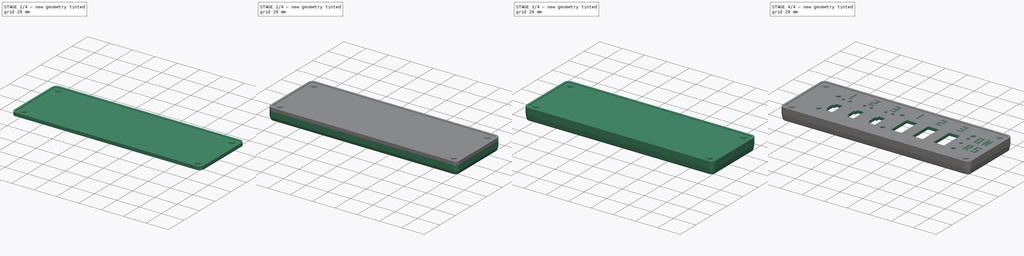
[diagram: build sequence overview — one tinted view per stage of 4, left to right]
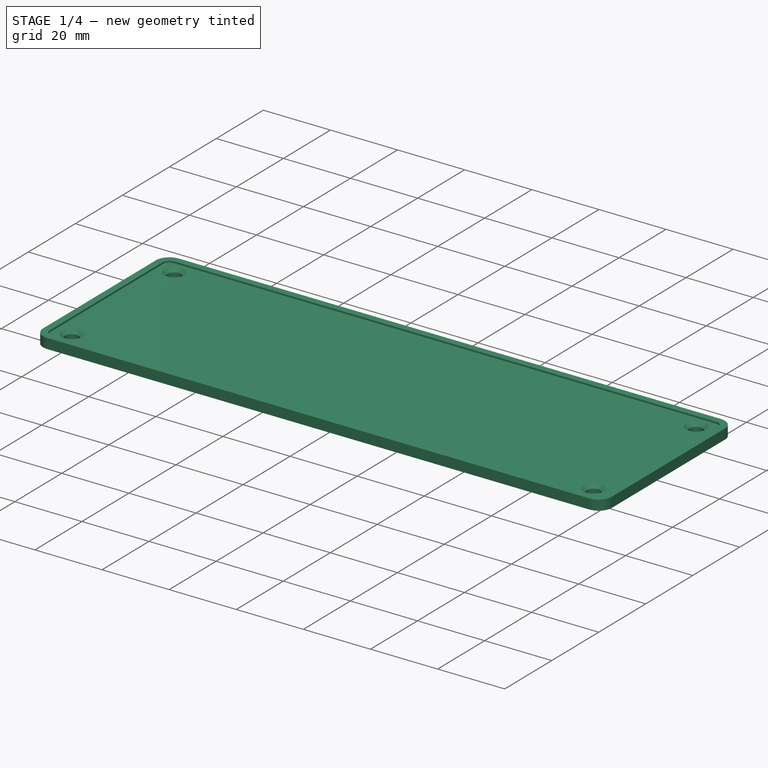
[diagram: stage 1 of 4 — iso view after this stage's code; geometry added in this stage tinted green]
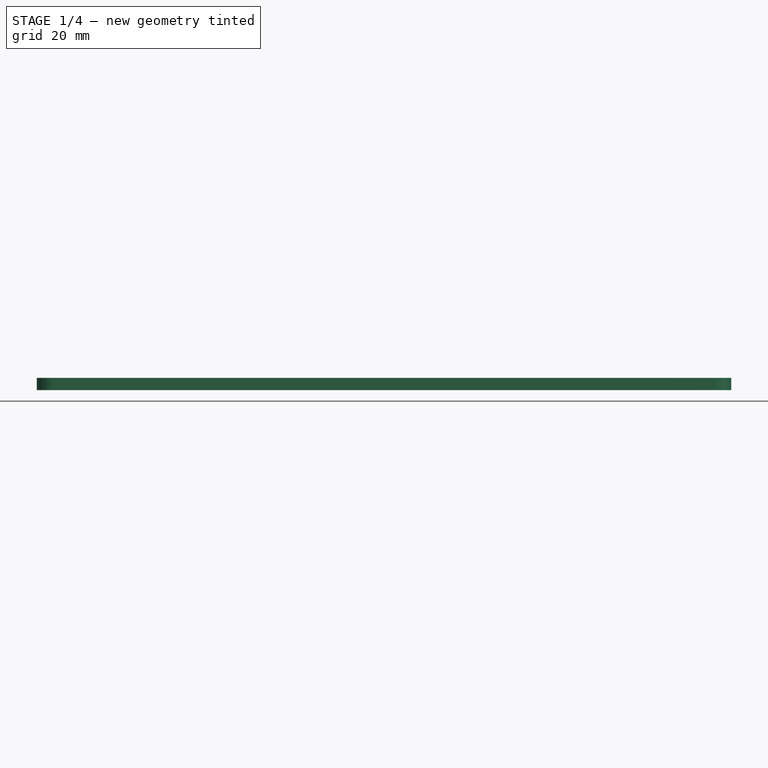
[diagram: stage 1 of 4 — front view after this stage's code; geometry added in this stage tinted green]
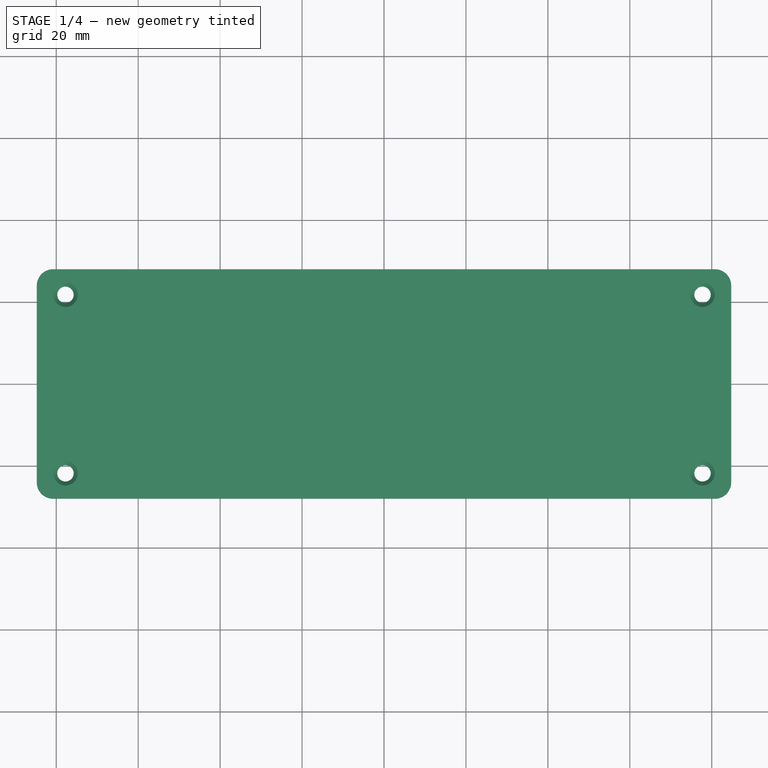
[diagram: stage 1 of 4 — top view after this stage's code; geometry added in this stage tinted green]
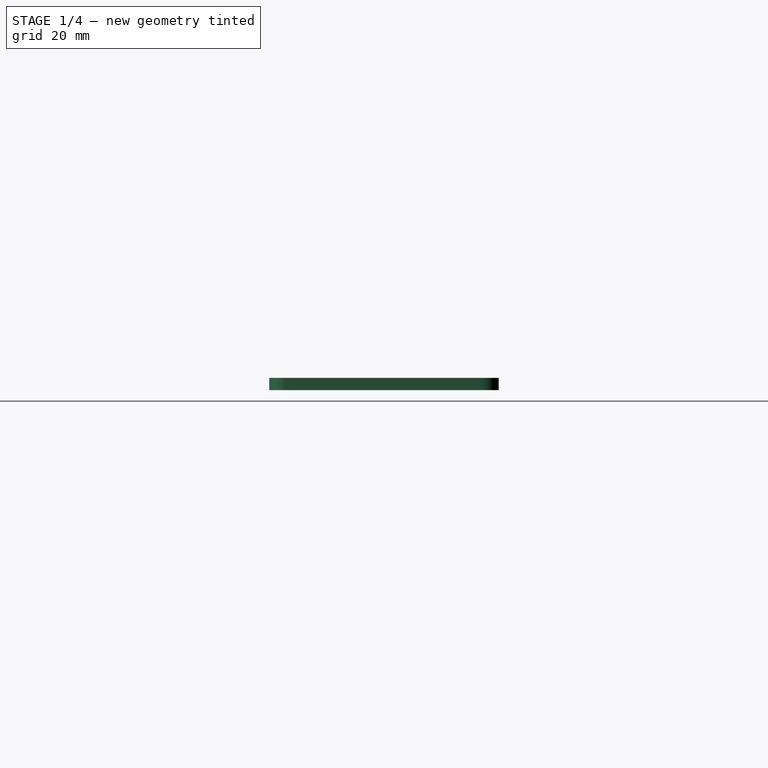
[diagram: stage 1 of 4 — right view after this stage's code; geometry added in this stage tinted green]
FCSTD DOCUMENT  (FreeCAD 0.18.4R)
Label: motorbox-3up-plates
License: All rights reserved
LicenseURL: http://en.wikipedia.org/wiki/All_rights_reserved
objects: Sketcher::SketchObject×5, PartDesign::Chamfer×5, App::DocumentObjectGroup×4, PartDesign::Pad×3, PartDesign::Body×2, PartDesign::Pocket×2, App::Part×1, PartDesign::FeatureBase×1
note: 23 computed .brp shape members not serialized (recipe doc carries the construction recipe); baked Part::Feature solids carry a one-line shape summary decoded from their .brp

FEATURE [App::DocumentObjectGroup] Group001  label="back plate parts"
FEATURE [Sketcher::SketchObject] Sketch  label="faceplate blank plan"
  MapMode = 5
  Support = -> [XY_Plane002]
  sketch-geometry (28):
    g0: LineSegment StartX=-84.75 StartY=0 StartZ=0 EndX=-84.75 EndY=24 EndZ=0
    g1: LineSegment [constr] StartX=-84.75 StartY=24 StartZ=0 EndX=-80.75 EndY=24 EndZ=0
    g2: LineSegment [constr] StartX=-80.75 StartY=24 StartZ=0 EndX=-80.75 EndY=28 EndZ=0
    g3: LineSegment StartX=-80.75 StartY=28 StartZ=0 EndX=0 EndY=28 EndZ=0
    g4: LineSegment StartX=0 StartY=28 StartZ=0 EndX=80.75 EndY=28 EndZ=0
    g5: LineSegment [constr] StartX=80.75 StartY=28 StartZ=0 EndX=80.75 EndY=24 EndZ=0
    g6: LineSegment [constr] StartX=80.75 StartY=24 StartZ=0 EndX=84.75 EndY=24 EndZ=0
    g7: LineSegment StartX=84.75 StartY=24 StartZ=0 EndX=84.75 EndY=-24 EndZ=0
    g8: LineSegment [constr] StartX=84.75 StartY=-24 StartZ=0 EndX=80.75 EndY=-24 EndZ=0
    g9: LineSegment [constr] StartX=80.75 StartY=-24 StartZ=0 EndX=80.75 EndY=-28 EndZ=0
    g10: LineSegment StartX=80.75 StartY=-28 StartZ=0 EndX=-80.75 EndY=-28 EndZ=0
    g11: LineSegment [constr] StartX=-80.75 StartY=-28 StartZ=0 EndX=-80.75 EndY=-24 EndZ=0
    g12: LineSegment [constr] StartX=-80.75 StartY=-24 StartZ=0 EndX=-84.75 EndY=-24 EndZ=0
    g13: LineSegment StartX=-84.75 StartY=-24 StartZ=0 EndX=-84.75 EndY=0 EndZ=0
    g14: ArcOfCircle CenterX=-80.75 CenterY=24 CenterZ=0 NormalX=0 NormalY=0 NormalZ=1 AngleXU=0 Radius=4 StartAngle=1.5708 EndAngle=3.14159
    g15: ArcOfCircle CenterX=80.75 CenterY=24 CenterZ=0 NormalX=0 NormalY=0 NormalZ=1 AngleXU=0 Radius=4 StartAngle=0 EndAngle=1.5708
    g16: ArcOfCircle CenterX=80.75 CenterY=-24 CenterZ=0 NormalX=0 NormalY=0 NormalZ=1 AngleXU=0 Radius=4 StartAngle=4.71239 EndAngle=6.28319
    g17: ArcOfCircle CenterX=-80.75 CenterY=-24 CenterZ=0 NormalX=0 NormalY=0 NormalZ=1 AngleXU=0 Radius=4 StartAngle=3.14159 EndAngle=4.71239
    g18: LineSegment [constr] StartX=-77.75 StartY=0 StartZ=0 EndX=-77.75 EndY=21.8 EndZ=0
    g19: LineSegment [constr] StartX=-77.75 StartY=21.8 StartZ=0 EndX=0 EndY=21.8 EndZ=0
    g20: LineSegment [constr] StartX=0 StartY=21.8 StartZ=0 EndX=77.75 EndY=21.8 EndZ=0
    g21: LineSegment [constr] StartX=77.75 StartY=21.8 StartZ=0 EndX=77.75 EndY=-21.8 EndZ=0
    g22: LineSegment [constr] StartX=77.75 StartY=-21.8 StartZ=0 EndX=-77.75 EndY=-21.8 EndZ=0
    g23: LineSegment [constr] StartX=-77.75 StartY=-21.8 StartZ=0 EndX=-77.75 EndY=0 EndZ=0
    g24: Circle CenterX=-77.75 CenterY=21.8 CenterZ=0 NormalX=0 NormalY=0 NormalZ=1 AngleXU=0 Radius=2
    g25: Circle CenterX=77.75 CenterY=21.8 CenterZ=0 NormalX=0 NormalY=0 NormalZ=1 AngleXU=0 Radius=2
    g26: Circle CenterX=-77.75 CenterY=-21.8 CenterZ=0 NormalX=0 NormalY=0 NormalZ=1 AngleXU=0 Radius=2
    g27: Circle CenterX=77.75 CenterY=-21.8 CenterZ=0 NormalX=0 NormalY=0 NormalZ=1 AngleXU=0 Radius=2
  constraints (76):
    c: PointOnObject(g0,g-1)
    c: Vertical(g0)
    c: Coincident(g0,g1)
    c: Horizontal(g1)
    c: Coincident(g1,g2)
    c: Vertical(g2)
    c: Coincident(g2,g3)
    c: PointOnObject(g3,g-2)
    c: Horizontal(g3)
    c: Coincident(g3,g4)
    c: Horizontal(g4)
    c: Coincident(g4,g5)
    c: Vertical(g5)
    c: Coincident(g5,g6)
    c: Horizontal(g6)
    c: Coincident(g6,g7)
    c: Vertical(g7)
    c: Coincident(g7,g8)
    c: Horizontal(g8)
    c: Coincident(g8,g9)
    c: Vertical(g9)
    c: Coincident(g9,g10)
    c: Horizontal(g10)
    c: Coincident(g10,g11)
    c: Vertical(g11)
    c: Coincident(g11,g12)
    c: Horizontal(g12)
    c: Coincident(g12,g13)
    c: Coincident(g13,g0)
    c: Vertical(g13)
    c: Coincident(g14,g1)
    c: Coincident(g14,g0)
    c: Coincident(g14,g2)
    c: Coincident(g15,g5)
    c: Coincident(g15,g4)
    c: Coincident(g15,g6)
    c: Coincident(g16,g8)
    c: Coincident(g16,g7)
    c: Coincident(g16,g9)
    c: Coincident(g17,g11)
    c: Coincident(g17,g10)
    c: Coincident(g17,g12)
    c: Radius(g15) = 4
    c: Equal(g15,g16)
    c: Equal(g15,g17)
    c: Equal(g15,g14)
    c: Equal(g0,g13)
    c: Equal(g3,g4)
    c: DistanceX(g12,g7) = 169.5
    c: DistanceY(g2,g10) = -56
    c: PointOnObject(g18,g-1)
    c: Vertical(g18)
    c: Coincident(g18,g19)
    c: PointOnObject(g19,g-2)
    c: Horizontal(g19)
    c: Coincident(g19,g20)
    c: Horizontal(g20)
    c: Coincident(g20,g21)
    c: Vertical(g21)
    c: Coincident(g21,g22)
    c: Horizontal(g22)
    c: Coincident(g22,g23)
    c: Coincident(g23,g18)
    c: Vertical(g23)
    c: Equal(g23,g18)
    c: Equal(g20,g19)
    c: DistanceY(g21) = -43.6
    c: DistanceX(g18,g20) = 155.5
    c: Coincident(g24,g18)
    c: Coincident(g25,g20)
    c: Coincident(g26,g22)
    c: Coincident(g27,g21)
    c: Radius(g24) = 2
    c: Equal(g24,g25)
    c: Equal(g24,g27)
    c: Equal(g24,g26)
FEATURE [App::DocumentObjectGroup] Group002  label="meshes"
FEATURE [PartDesign::Pad] Pad  label="faceplate blank plate"
  Length = 2.5
  Length2 = 100
  Profile = -> Sketch
  Type = 0
FEATURE [Sketcher::SketchObject] Sketch001  label="faceplate blank rim plan"
  ExternalGeometry = -> [Pad]
  MapMode = 5
  Placement = pos=(0,0,2.5) rot=(0,0,1;0rad)
  Support = -> [Pad]
  sketch-geometry (32):
    g0: LineSegment [constr] StartX=-80.75 StartY=24 StartZ=0 EndX=-80.75 EndY=28 EndZ=0
    g1: LineSegment StartX=-80.75 StartY=28 StartZ=0 EndX=80.75 EndY=28 EndZ=0
    g2: LineSegment [constr] StartX=80.75 StartY=28 StartZ=0 EndX=80.75 EndY=24 EndZ=0
    g3: LineSegment [constr] StartX=80.75 StartY=24 StartZ=0 EndX=84.75 EndY=24 EndZ=0
    g4: LineSegment StartX=84.75 StartY=24 StartZ=0 EndX=84.75 EndY=-24 EndZ=0
    g5: LineSegment [constr] StartX=84.75 StartY=-24 StartZ=0 EndX=80.75 EndY=-24 EndZ=0
    g6: LineSegment [constr] StartX=80.75 StartY=-24 StartZ=0 EndX=80.75 EndY=-28 EndZ=0
    g7: LineSegment StartX=80.75 StartY=-28 StartZ=0 EndX=-80.75 EndY=-28 EndZ=0
    g8: LineSegment [constr] StartX=-80.75 StartY=-28 StartZ=0 EndX=-80.75 EndY=-24 EndZ=0
    g9: LineSegment [constr] StartX=-80.75 StartY=-24 StartZ=0 EndX=-84.75 EndY=-24 EndZ=0
    g10: LineSegment StartX=-84.75 StartY=-24 StartZ=0 EndX=-84.75 EndY=24 EndZ=0
    g11: LineSegment [constr] StartX=-84.75 StartY=24 StartZ=0 EndX=-80.75 EndY=24 EndZ=0
    g12: ArcOfCircle CenterX=-80.75 CenterY=24 CenterZ=0 NormalX=0 NormalY=0 NormalZ=1 AngleXU=0 Radius=4 StartAngle=1.5708 EndAngle=3.14159
    g13: ArcOfCircle CenterX=80.75 CenterY=24 CenterZ=0 NormalX=0 NormalY=0 NormalZ=1 AngleXU=0 Radius=4 StartAngle=0 EndAngle=1.5708
    g14: ArcOfCircle CenterX=80.75 CenterY=-24 CenterZ=0 NormalX=0 NormalY=0 NormalZ=1 AngleXU=0 Radius=4 StartAngle=4.71239 EndAngle=6.28319
    g15: ArcOfCircle CenterX=-80.75 CenterY=-24 CenterZ=0 NormalX=0 NormalY=0 NormalZ=1 AngleXU=0 Radius=4 StartAngle=3.14159 EndAngle=4.71239
    g16: LineSegment [constr] StartX=-80.75 StartY=24 StartZ=0 EndX=-80.75 EndY=26 EndZ=0
    g17: LineSegment StartX=-80.75 StartY=26 StartZ=0 EndX=80.75 EndY=26 EndZ=0
    g18: LineSegment [constr] StartX=80.75 StartY=26 StartZ=0 EndX=80.75 EndY=24 EndZ=0
    g19: LineSegment [constr] StartX=80.75 StartY=24 StartZ=0 EndX=82.75 EndY=24 EndZ=0
    g20: LineSegment StartX=82.75 StartY=24 StartZ=0 EndX=82.75 EndY=-24 EndZ=0
    g21: LineSegment [constr] StartX=82.75 StartY=-24 StartZ=0 EndX=80.75 EndY=-24 EndZ=0
    g22: LineSegment [constr] StartX=80.75 StartY=-24 StartZ=0 EndX=80.75 EndY=-26 EndZ=0
    g23: LineSegment StartX=80.75 StartY=-26 StartZ=0 EndX=-80.75 EndY=-26 EndZ=0
    g24: LineSegment [constr] StartX=-80.75 StartY=-26 StartZ=0 EndX=-80.75 EndY=-24 EndZ=0
    g25: LineSegment [constr] StartX=-80.75 StartY=-24 StartZ=0 EndX=-82.75 EndY=-24 EndZ=0
    g26: LineSegment StartX=-82.75 StartY=-24 StartZ=0 EndX=-82.75 EndY=24 EndZ=0
    g27: LineSegment [constr] StartX=-82.75 StartY=24 StartZ=0 EndX=-80.75 EndY=24 EndZ=0
    g28: ArcOfCircle CenterX=-80.75 CenterY=24 CenterZ=0 NormalX=0 NormalY=0 NormalZ=1 AngleXU=0 Radius=2 StartAngle=1.5708 EndAngle=3.14159
    g29: ArcOfCircle CenterX=80.75 CenterY=24 CenterZ=0 NormalX=0 NormalY=0 NormalZ=1 AngleXU=0 Radius=2 StartAngle=0 EndAngle=1.5708
    g30: ArcOfCircle CenterX=80.75 CenterY=-24 CenterZ=0 NormalX=0 NormalY=0 NormalZ=1 AngleXU=0 Radius=2 StartAngle=4.71239 EndAngle=6.28319
    g31: ArcOfCircle CenterX=-80.75 CenterY=-24 CenterZ=0 NormalX=0 NormalY=0 NormalZ=1 AngleXU=0 Radius=2 StartAngle=3.14159 EndAngle=4.71239
  constraints (80):
    c: Coincident(g0,g-3)
    c: Vertical(g0)
    c: Coincident(g0,g1)
    c: Coincident(g1,g2)
    c: Coincident(g2,g-4)
    c: Coincident(g2,g3)
    c: Horizontal(g3)
    c: Coincident(g3,g4)
    c: Coincident(g4,g5)
    c: Coincident(g5,g-5)
    c: Horizontal(g5)
    c: Coincident(g5,g6)
    c: Vertical(g6)
    c: Coincident(g6,g7)
    c: Coincident(g7,g8)
    c: Coincident(g8,g-6)
    c: Vertical(g8)
    c: Coincident(g8,g9)
    c: Horizontal(g9)
    c: Coincident(g9,g10)
    c: Coincident(g10,g11)
    c: Coincident(g11,g0)
    c: Horizontal(g11)
    c: Vertical(g2)
    c: Coincident(g12,g0)
    c: Coincident(g12,g10)
    c: Coincident(g12,g0)
    c: Coincident(g13,g2)
    c: Coincident(g13,g1)
    c: Coincident(g13,g3)
    c: Coincident(g14,g5)
    c: Coincident(g14,g4)
    c: Coincident(g14,g6)
    c: Coincident(g15,g8)
    c: Coincident(g15,g7)
    c: Coincident(g15,g9)
    c: Radius(g12) = 4
    c: Equal(g12,g13)
    c: Equal(g12,g14)
    c: Equal(g12,g15)
    c: Coincident(g0,g16)
    c: Vertical(g16)
    c: Coincident(g16,g17)
    c: Coincident(g17,g18)
    c: Coincident(g18,g2)
    c: Vertical(g18)
    c: Coincident(g18,g19)
    c: Horizontal(g19)
    c: Coincident(g19,g20)
    c: Coincident(g20,g21)
    c: Coincident(g21,g5)
    c: Horizontal(g21)
    c: Coincident(g21,g22)
    c: Vertical(g22)
    c: Coincident(g22,g23)
    c: Coincident(g23,g24)
    c: Coincident(g24,g8)
    c: Vertical(g24)
    c: Coincident(g24,g25)
    c: Horizontal(g25)
    c: Coincident(g25,g26)
    c: Coincident(g26,g27)
    c: Coincident(g27,g16)
    c: Horizontal(g27)
    c: Coincident(g28,g0)
    c: Coincident(g28,g26)
    c: Coincident(g28,g16)
    c: Coincident(g29,g2)
    c: Coincident(g29,g17)
    c: Coincident(g29,g19)
    c: Coincident(g30,g5)
    c: Coincident(g30,g20)
    c: Coincident(g30,g22)
    c: Coincident(g31,g8)
    c: Coincident(g31,g23)
    c: Coincident(g31,g25)
    c: Radius(g29) = 2
    c: Equal(g29,g30)
    c: Equal(g29,g31)
    c: Equal(g29,g28)
FEATURE [PartDesign::Pad] Pad001  label="faceplate blank with rim"
  BaseFeature = -> Pad
  Length = 0.5
  Length2 = 100
  Profile = -> Sketch001
  Type = 0
FEATURE [PartDesign::Chamfer] Chamfer  label="faceplate blank with csink"
  Base = -> Pad001 [Edge43,Edge47,Edge45,Edge41]
  BaseFeature = -> Pad001
  Size = 1
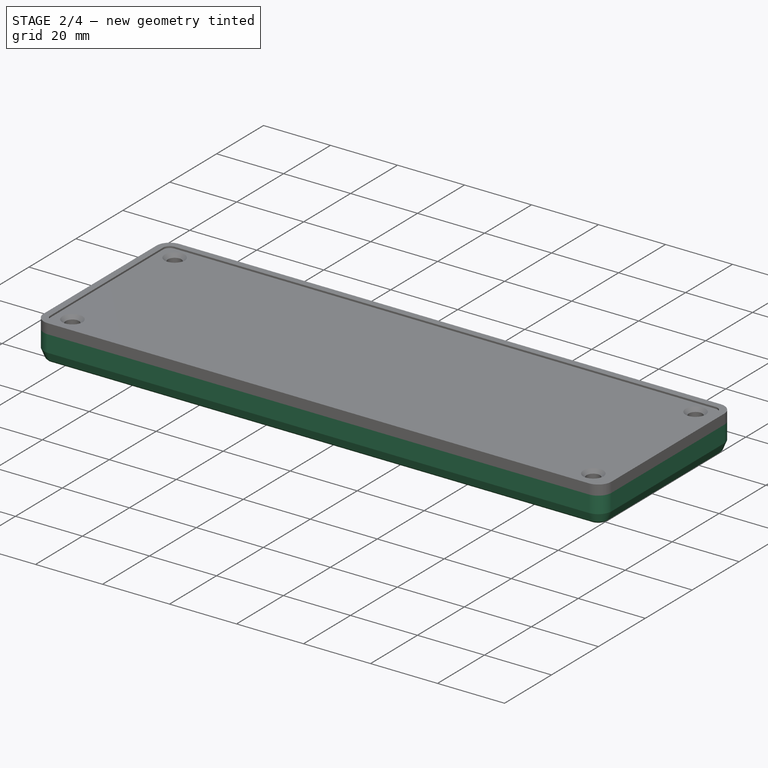
[diagram: stage 2 of 4 — iso view after this stage's code; geometry added in this stage tinted green]
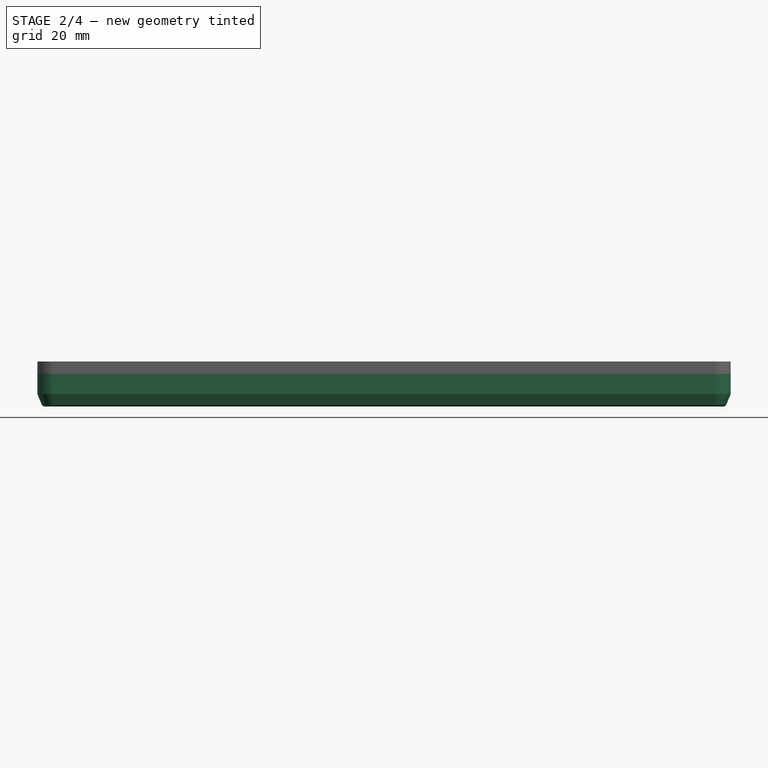
[diagram: stage 2 of 4 — front view after this stage's code; geometry added in this stage tinted green]
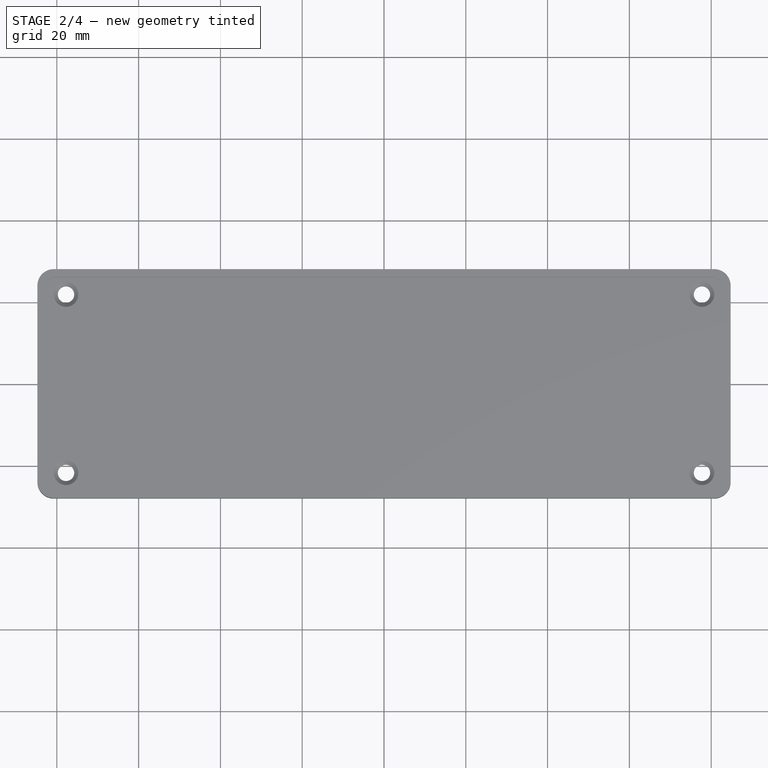
[diagram: stage 2 of 4 — top view after this stage's code; geometry added in this stage tinted green]
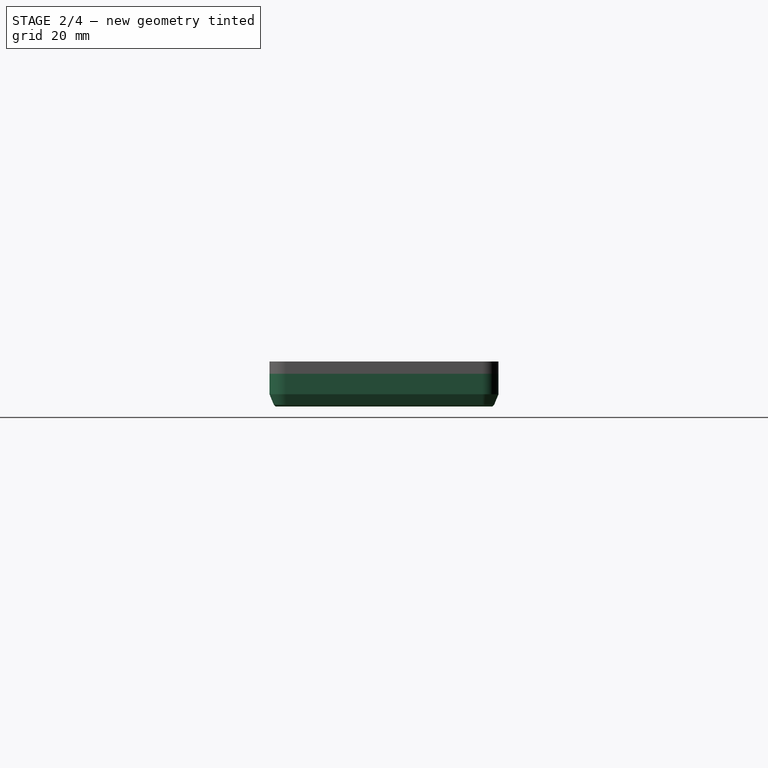
[diagram: stage 2 of 4 — right view after this stage's code; geometry added in this stage tinted green]
FEATURE [Sketcher::SketchObject] Sketch002  label="faceplate blank lip plan"
  ExternalGeometry = -> [Chamfer]
  MapMode = 5
  Placement = pos=(0,0,0) rot=(1,0,0;3.14159rad)
  Support = -> [Chamfer]
  sketch-geometry (32):
    g0: LineSegment [constr] StartX=-80.75 StartY=24 StartZ=0 EndX=-80.75 EndY=28 EndZ=0
    g1: LineSegment StartX=-80.75 StartY=28 StartZ=0 EndX=80.75 EndY=28 EndZ=0
    g2: LineSegment [constr] StartX=80.75 StartY=28 StartZ=0 EndX=80.75 EndY=24 EndZ=0
    g3: LineSegment [constr] StartX=80.75 StartY=24 StartZ=0 EndX=84.75 EndY=24 EndZ=0
    g4: LineSegment StartX=84.75 StartY=24 StartZ=0 EndX=84.75 EndY=-24 EndZ=0
    g5: LineSegment [constr] StartX=84.75 StartY=-24 StartZ=0 EndX=80.75 EndY=-24 EndZ=0
    g6: LineSegment [constr] StartX=80.75 StartY=-24 StartZ=0 EndX=80.75 EndY=-28 EndZ=0
    g7: LineSegment StartX=80.75 StartY=-28 StartZ=0 EndX=-80.75 EndY=-28 EndZ=0
    g8: LineSegment [constr] StartX=-80.75 StartY=-28 StartZ=0 EndX=-80.75 EndY=-24 EndZ=0
    g9: LineSegment [constr] StartX=-80.75 StartY=-24 StartZ=0 EndX=-84.75 EndY=-24 EndZ=0
    g10: LineSegment StartX=-84.75 StartY=-24 StartZ=0 EndX=-84.75 EndY=24 EndZ=0
    g11: LineSegment [constr] StartX=-84.75 StartY=24 StartZ=0 EndX=-80.75 EndY=24 EndZ=0
    g12: ArcOfCircle CenterX=-80.75 CenterY=24 CenterZ=0 NormalX=0 NormalY=0 NormalZ=1 AngleXU=0 Radius=4 StartAngle=1.5708 EndAngle=3.14159
    g13: ArcOfCircle CenterX=80.75 CenterY=24 CenterZ=0 NormalX=0 NormalY=0 NormalZ=1 AngleXU=0 Radius=4 StartAngle=0 EndAngle=1.5708
    g14: ArcOfCircle CenterX=-80.75 CenterY=-24 CenterZ=0 NormalX=0 NormalY=0 NormalZ=1 AngleXU=0 Radius=4 StartAngle=3.14159 EndAngle=4.71239
    g15: ArcOfCircle CenterX=80.75 CenterY=-24 CenterZ=0 NormalX=0 NormalY=0 NormalZ=1 AngleXU=0 Radius=4 StartAngle=4.71239 EndAngle=6.28319
    g16: LineSegment [constr] StartX=-80.75 StartY=24 StartZ=0 EndX=-80.75 EndY=26 EndZ=0
    g17: LineSegment StartX=-80.75 StartY=26 StartZ=0 EndX=80.75 EndY=26 EndZ=0
    g18: LineSegment [constr] StartX=80.75 StartY=26 StartZ=0 EndX=80.75 EndY=24 EndZ=0
    g19: LineSegment [constr] StartX=80.75 StartY=24 StartZ=0 EndX=82.75 EndY=24 EndZ=0
    g20: LineSegment StartX=82.75 StartY=24 StartZ=0 EndX=82.75 EndY=-24 EndZ=0
    g21: LineSegment [constr] StartX=82.75 StartY=-24 StartZ=0 EndX=80.75 EndY=-24 EndZ=0
    g22: LineSegment [constr] StartX=80.75 StartY=-24 StartZ=0 EndX=80.75 EndY=-26 EndZ=0
    g23: LineSegment StartX=80.75 StartY=-26 StartZ=0 EndX=-80.75 EndY=-26 EndZ=0
    g24: LineSegment [constr] StartX=-80.75 StartY=-26 StartZ=0 EndX=-80.75 EndY=-24 EndZ=0
    g25: LineSegment [constr] StartX=-80.75 StartY=-24 StartZ=0 EndX=-82.75 EndY=-24 EndZ=0
    g26: LineSegment StartX=-82.75 StartY=-24 StartZ=0 EndX=-82.75 EndY=24 EndZ=0
    g27: LineSegment [constr] StartX=-82.75 StartY=24 StartZ=0 EndX=-80.75 EndY=24 EndZ=0
    g28: ArcOfCircle CenterX=-80.75 CenterY=24 CenterZ=0 NormalX=0 NormalY=0 NormalZ=1 AngleXU=0 Radius=2 StartAngle=1.5708 EndAngle=3.14159
    g29: ArcOfCircle CenterX=80.75 CenterY=24 CenterZ=0 NormalX=0 NormalY=0 NormalZ=1 AngleXU=0 Radius=2 StartAngle=0 EndAngle=1.5708
    g30: ArcOfCircle CenterX=80.75 CenterY=-24 CenterZ=0 NormalX=0 NormalY=0 NormalZ=1 AngleXU=0 Radius=2 StartAngle=4.71239 EndAngle=6.28319
    g31: ArcOfCircle CenterX=-80.75 CenterY=-24 CenterZ=0 NormalX=0 NormalY=0 NormalZ=1 AngleXU=0 Radius=2 StartAngle=3.14159 EndAngle=4.71239
  constraints (80):
    c: Coincident(g0,g-3)
    c: Vertical(g0)
    c: Coincident(g0,g1)
    c: Coincident(g1,g2)
    c: Coincident(g2,g-4)
    c: Coincident(g2,g3)
    c: Horizontal(g3)
    c: Coincident(g3,g4)
    c: Coincident(g4,g5)
    c: Coincident(g5,g-5)
    c: Coincident(g5,g6)
    c: Vertical(g6)
    c: Coincident(g6,g7)
    c: Coincident(g7,g8)
    c: Coincident(g8,g-6)
    c: Coincident(g8,g9)
    c: Horizontal(g9)
    c: Coincident(g9,g10)
    c: Coincident(g10,g11)
    c: Coincident(g11,g0)
    c: Horizontal(g11)
    c: Vertical(g8)
    c: Vertical(g2)
    c: Horizontal(g5)
    c: Coincident(g12,g0)
    c: Coincident(g12,g0)
    c: Coincident(g10,g12)
    c: Coincident(g13,g2)
    c: Coincident(g13,g1)
    c: Coincident(g13,g3)
    c: Coincident(g14,g8)
    c: Coincident(g14,g9)
    c: Coincident(g14,g7)
    c: Coincident(g15,g5)
    c: Coincident(g15,g6)
    c: Coincident(g15,g4)
    c: Radius(g12) = 4
    c: Equal(g12,g13)
    c: Equal(g12,g15)
    c: Equal(g12,g14)
    c: Coincident(g0,g16)
    c: Vertical(g16)
    c: Coincident(g16,g17)
    c: Coincident(g17,g18)
    c: Coincident(g18,g2)
    c: Vertical(g18)
    c: Coincident(g18,g19)
    c: Horizontal(g19)
    c: Coincident(g19,g20)
    c: Coincident(g20,g21)
    c: Coincident(g21,g5)
    c: Horizontal(g21)
    c: Coincident(g21,g22)
    c: Vertical(g22)
    c: Coincident(g22,g23)
    c: Coincident(g23,g24)
    c: Coincident(g24,g8)
    c: Vertical(g24)
    c: Coincident(g24,g25)
    c: Horizontal(g25)
    c: Coincident(g25,g26)
    c: Coincident(g26,g27)
    c: Coincident(g27,g16)
    c: Horizontal(g27)
    c: Coincident(g28,g0)
    c: Coincident(g28,g26)
    c: Coincident(g28,g16)
    c: Coincident(g29,g2)
    c: Coincident(g29,g17)
    c: Coincident(g29,g19)
    c: Coincident(g30,g5)
    c: Coincident(g30,g20)
    c: Coincident(g30,g22)
    c: Coincident(g31,g8)
    c: Coincident(g31,g23)
    c: Coincident(g31,g25)
    c: Radius(g29) = 2
    c: Equal(g29,g30)
    c: Equal(g29,g31)
    c: Equal(g29,g28)
FEATURE [PartDesign::Pad] Pad002  label="faceplate blank with lip"
  BaseFeature = -> Chamfer
  Length = 8
  Length2 = 100
  Profile = -> Sketch002
  Type = 0
FEATURE [PartDesign::Chamfer] Chamfer001  label="faceplate blank with first lip taper"
  Base = -> Pad002 [Edge75]
  BaseFeature = -> Pad002
  Size = 1.5
FEATURE [PartDesign::Chamfer] Chamfer002  label="faceplate blank with second lip taper"
  Base = -> Chamfer001 [Edge18]
  BaseFeature = -> Chamfer001
  Size = 1.5
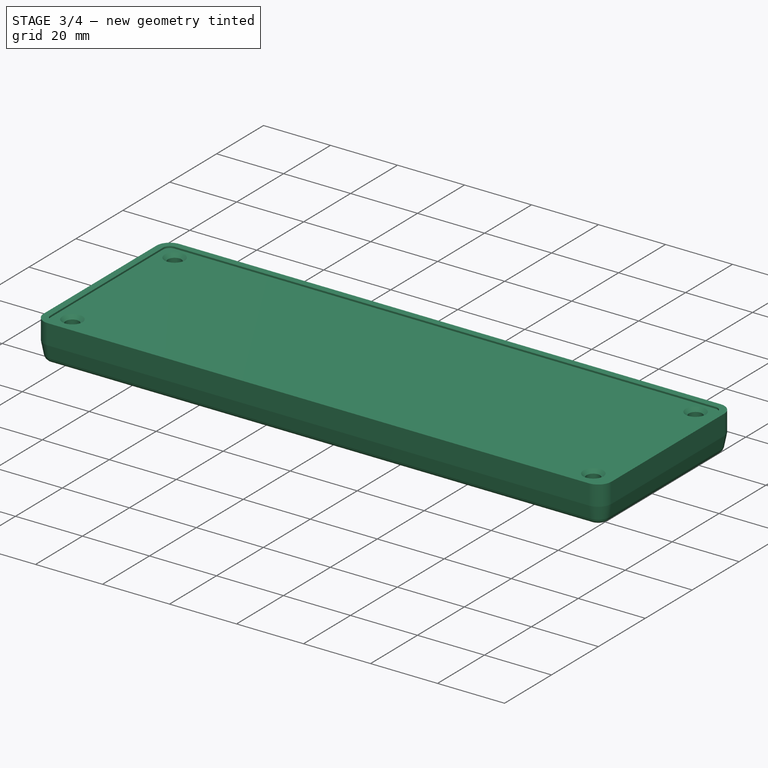
[diagram: stage 3 of 4 — iso view after this stage's code; geometry added in this stage tinted green]
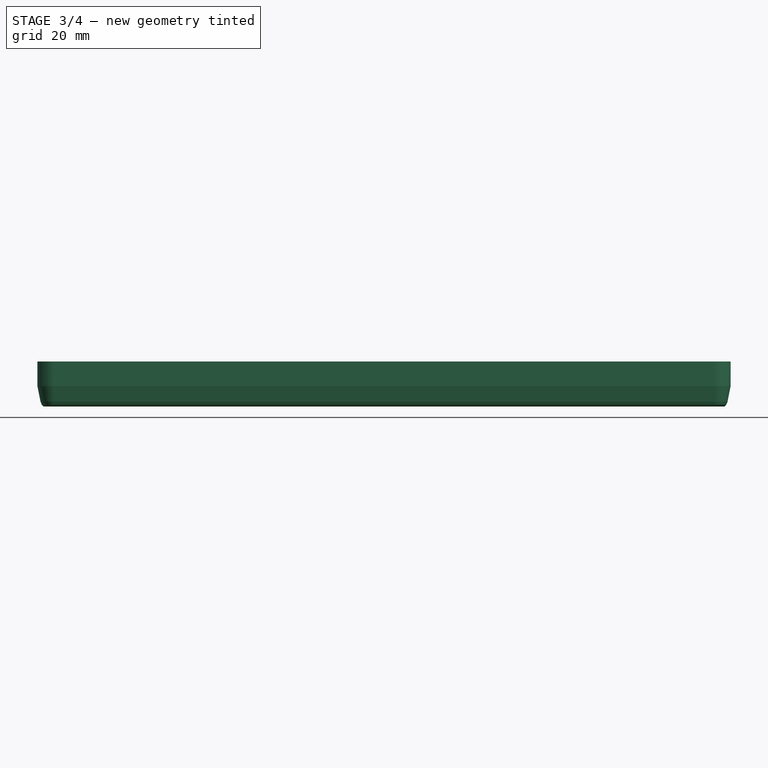
[diagram: stage 3 of 4 — front view after this stage's code; geometry added in this stage tinted green]
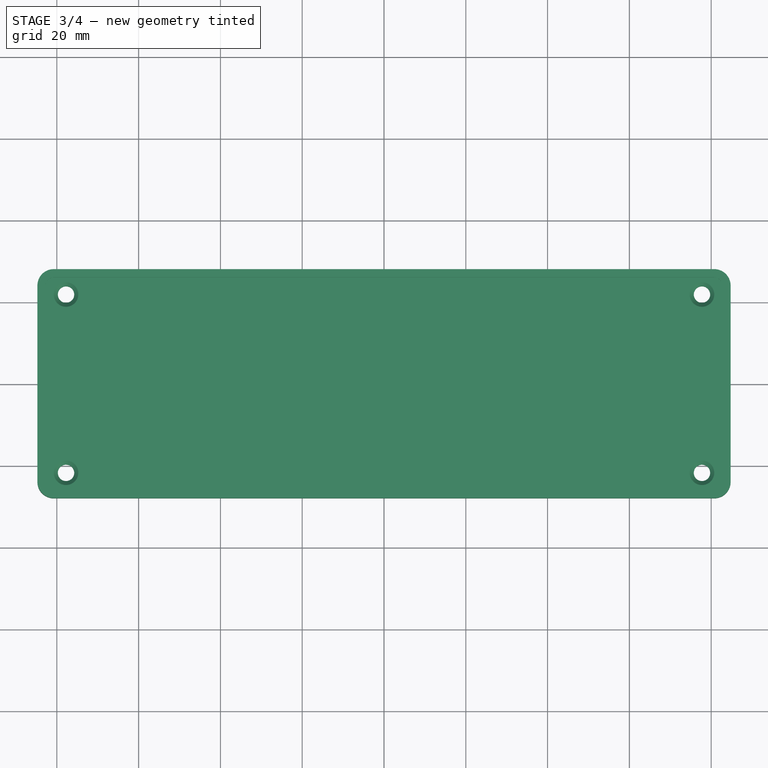
[diagram: stage 3 of 4 — top view after this stage's code; geometry added in this stage tinted green]
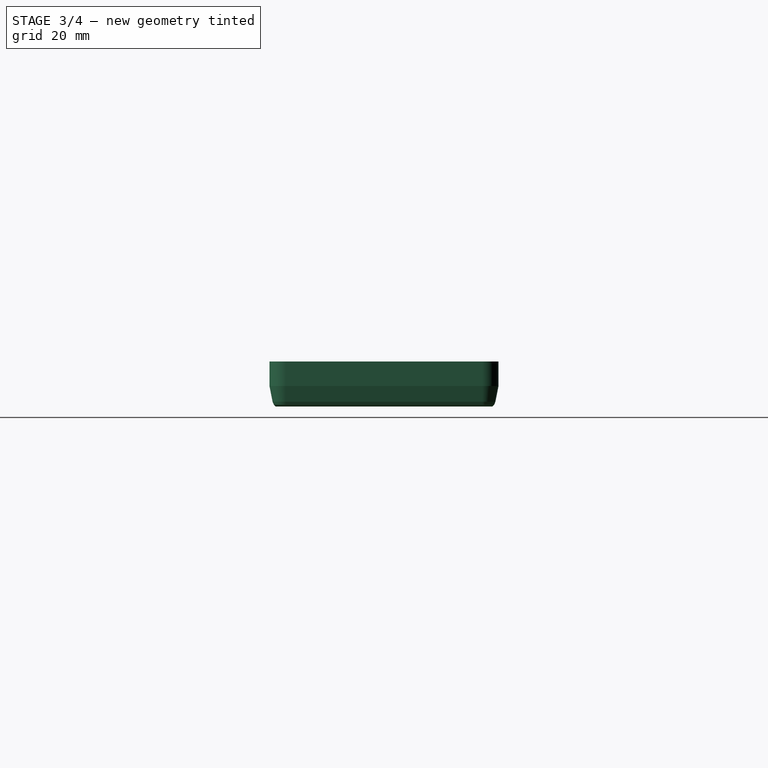
[diagram: stage 3 of 4 — right view after this stage's code; geometry added in this stage tinted green]
FEATURE [PartDesign::Chamfer] Chamfer003  label="faceplate blank with third lip taper"
  Base = -> Chamfer002 [Edge9]
  BaseFeature = -> Chamfer002
  Size = 2
FEATURE [PartDesign::Body] Chamfer003Body  label="faceplate blank body"
  Group = -> [Sketch,Pad,Sketch001,Pad001,Chamfer,Sketch002,Pad002,Chamfer001,Chamfer002,Chamfer003]
  Origin = -> Origin002
  Tip = -> Chamfer003
FEATURE [App::Part] Part  label="faceplate blank part"
  Group = -> [Chamfer003Body]
  Origin = -> Origin001
FEATURE [App::DocumentObjectGroup] Group003  label="faceplate blank parts"
  Group = -> [Part]
FEATURE [PartDesign::FeatureBase] Clone  label="faceplate blank clone"
  BaseFeature = -> Chamfer003Body
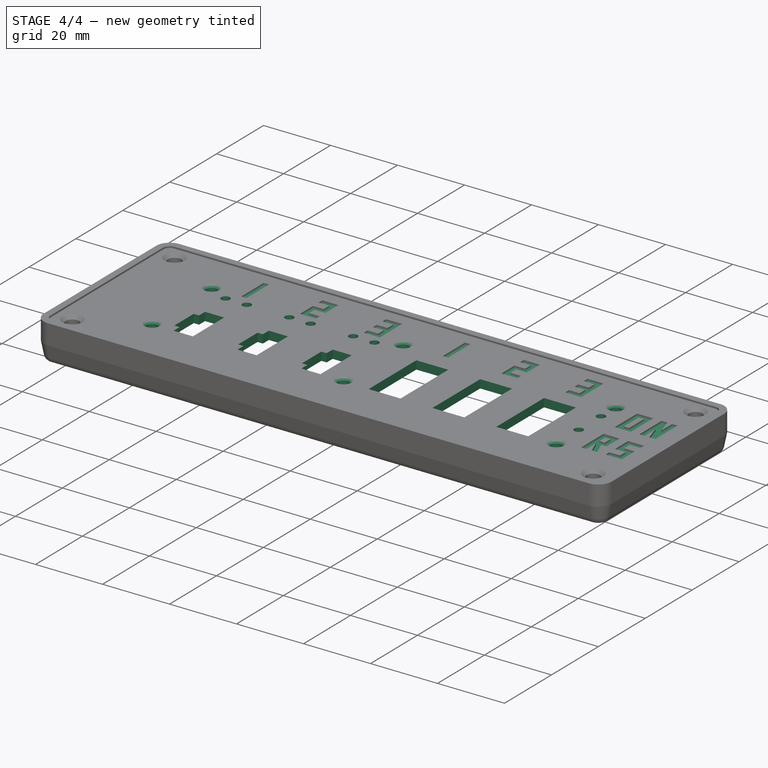
[diagram: stage 4 of 4 — iso view after this stage's code; geometry added in this stage tinted green]
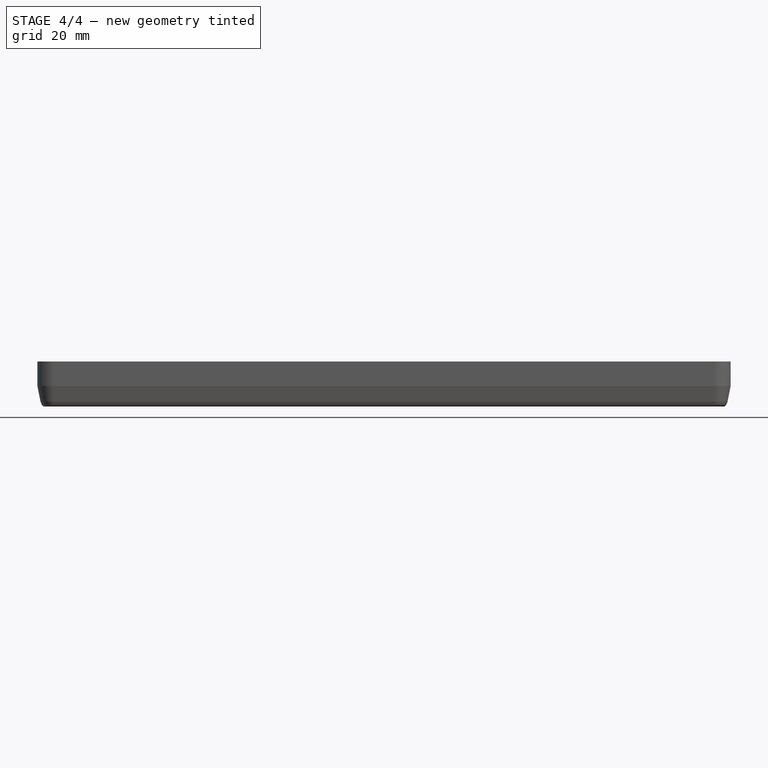
[diagram: stage 4 of 4 — front view after this stage's code; geometry added in this stage tinted green]
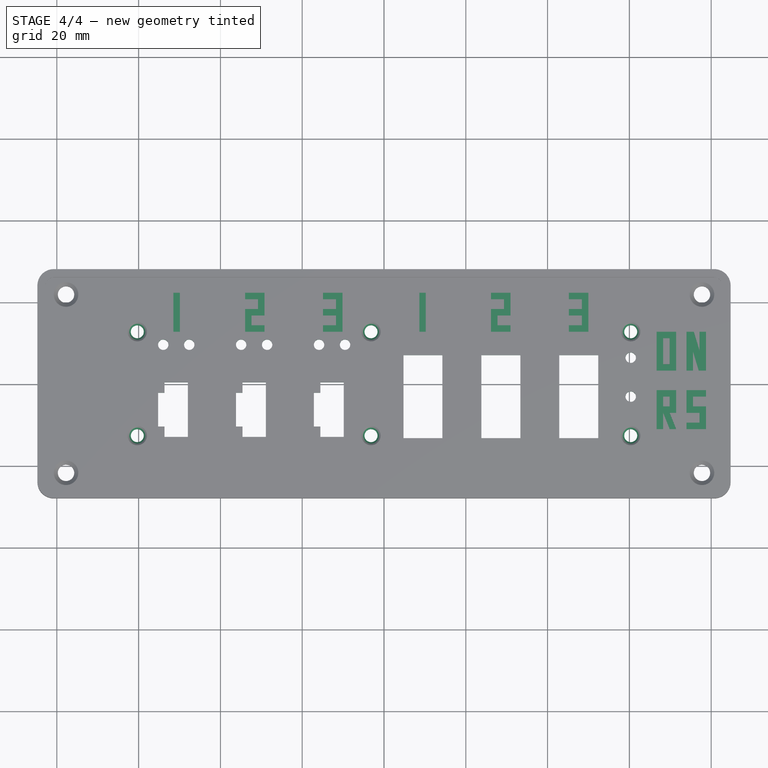
[diagram: stage 4 of 4 — top view after this stage's code; geometry added in this stage tinted green]
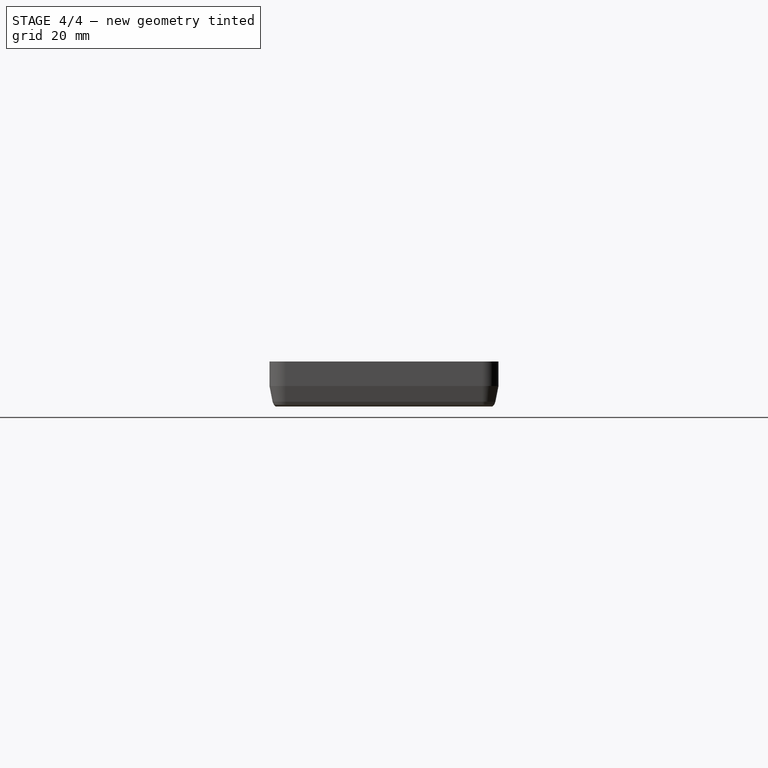
[diagram: stage 4 of 4 — right view after this stage's code; geometry added in this stage tinted green]
FEATURE [Sketcher::SketchObject] Sketch004  label="front plate cutout plan"
  MapMode = 5
  Placement = pos=(0,0,2.5) rot=(0,0,1;0rad)
  Support = -> [Clone]
  sketch-geometry (74):
    g0: LineSegment [constr] StartX=0 StartY=19.05 StartZ=0 EndX=66.675 EndY=19.05 EndZ=0
    g1: LineSegment [constr] StartX=66.675 StartY=19.05 StartZ=0 EndX=66.675 EndY=0 EndZ=0
    g2: LineSegment [constr] StartX=66.675 StartY=0 StartZ=0 EndX=66.675 EndY=-19.05 EndZ=0
    g3: LineSegment [constr] StartX=66.675 StartY=-19.05 StartZ=0 EndX=-66.675 EndY=-19.05 EndZ=0
    g4: LineSegment [constr] StartX=-66.675 StartY=-19.05 StartZ=0 EndX=-66.675 EndY=19.05 EndZ=0
    g5: LineSegment [constr] StartX=-66.675 StartY=19.05 StartZ=0 EndX=0 EndY=19.05 EndZ=0
    g6: LineSegment [constr] StartX=-60.325 StartY=-12.7 StartZ=0 EndX=-60.325 EndY=12.7 EndZ=0
    g7: LineSegment [constr] StartX=-60.325 StartY=12.7 StartZ=0 EndX=-3.175 EndY=12.7 EndZ=0
    g8: LineSegment [constr] StartX=-3.175 StartY=12.7 StartZ=0 EndX=60.325 EndY=12.7 EndZ=0
    g9: LineSegment [constr] StartX=60.325 StartY=12.7 StartZ=0 EndX=60.325 EndY=-12.7 EndZ=0
    g10: LineSegment [constr] StartX=-3.175 StartY=12.7 StartZ=0 EndX=-3.175 EndY=-12.7 EndZ=0
    g11: Circle CenterX=-60.325 CenterY=12.7 CenterZ=0 NormalX=0 NormalY=0 NormalZ=1 AngleXU=0 Radius=1.5875
    g12: Circle CenterX=-60.325 CenterY=-12.7 CenterZ=0 NormalX=0 NormalY=0 NormalZ=1 AngleXU=0 Radius=1.5875
    g13: Circle CenterX=-3.175 CenterY=12.7 CenterZ=0 NormalX=0 NormalY=0 NormalZ=1 AngleXU=0 Radius=1.5875
    g14: Circle CenterX=-3.175 CenterY=-12.7 CenterZ=0 NormalX=0 NormalY=0 NormalZ=1 AngleXU=0 Radius=1.5875
    g15: Circle CenterX=60.325 CenterY=12.7 CenterZ=0 NormalX=0 NormalY=0 NormalZ=1 AngleXU=0 Radius=1.5875
    g16: Circle CenterX=60.325 CenterY=-12.7 CenterZ=0 NormalX=0 NormalY=0 NormalZ=1 AngleXU=0 Radius=1.5875
    g17: LineSegment [constr] StartX=-53.975 StartY=9.525 StartZ=0 EndX=-47.625 EndY=9.525 EndZ=0
    g18: LineSegment [constr] StartX=-47.625 StartY=9.525 StartZ=0 EndX=-34.925 EndY=9.525 EndZ=0
    g19: LineSegment [constr] StartX=-34.925 StartY=9.525 StartZ=0 EndX=-28.575 EndY=9.525 EndZ=0
    g20: LineSegment [constr] StartX=-28.575 StartY=9.525 StartZ=0 EndX=-15.875 EndY=9.525 EndZ=0
    g21: LineSegment [constr] StartX=-15.875 StartY=9.525 StartZ=0 EndX=-9.525 EndY=9.525 EndZ=0
    g22: Circle CenterX=-53.975 CenterY=9.525 CenterZ=0 NormalX=0 NormalY=0 NormalZ=1 AngleXU=0 Radius=1.27
    g23: Circle CenterX=-47.625 CenterY=9.525 CenterZ=0 NormalX=0 NormalY=0 NormalZ=1 AngleXU=0 Radius=1.27
    g24: Circle CenterX=-34.925 CenterY=9.525 CenterZ=0 NormalX=0 NormalY=0 NormalZ=1 AngleXU=0 Radius=1.27
    g25: Circle CenterX=-28.575 CenterY=9.525 CenterZ=0 NormalX=0 NormalY=0 NormalZ=1 AngleXU=0 Radius=1.27
    g26: Circle CenterX=-15.875 CenterY=9.525 CenterZ=0 NormalX=0 NormalY=0 NormalZ=1 AngleXU=0 Radius=1.27
    g27: Circle CenterX=-9.525 CenterY=9.525 CenterZ=0 NormalX=0 NormalY=0 NormalZ=1 AngleXU=0 Radius=1.27
    g28: LineSegment StartX=52.3875 StartY=6.985 StartZ=0 EndX=52.3875 EndY=-3.175 EndZ=0
    g29: LineSegment StartX=52.3875 StartY=-3.175 StartZ=0 EndX=52.3875 EndY=-13.335 EndZ=0
    g30: LineSegment StartX=52.3875 StartY=-13.335 StartZ=0 EndX=47.625 EndY=-13.335 EndZ=0
    g31: LineSegment StartX=47.625 StartY=-13.335 StartZ=0 EndX=42.8625 EndY=-13.335 EndZ=0
    g32: LineSegment StartX=42.8625 StartY=-13.335 StartZ=0 EndX=42.8625 EndY=6.985 EndZ=0
    g33: LineSegment StartX=42.8625 StartY=6.985 StartZ=0 EndX=52.3875 EndY=6.985 EndZ=0
    g34: LineSegment [constr] StartX=42.8625 StartY=6.985 StartZ=0 EndX=33.3375 EndY=6.985 EndZ=0
    g35: LineSegment StartX=33.3375 StartY=6.985 StartZ=0 EndX=23.8125 EndY=6.985 EndZ=0
    g36: LineSegment StartX=23.8125 StartY=6.985 StartZ=0 EndX=23.8125 EndY=-13.335 EndZ=0
    g37: LineSegment StartX=23.8125 StartY=-13.335 StartZ=0 EndX=33.3375 EndY=-13.335 EndZ=0
    g38: LineSegment StartX=33.3375 StartY=-13.335 StartZ=0 EndX=33.3375 EndY=6.985 EndZ=0
    g39: LineSegment [constr] StartX=23.8125 StartY=6.985 StartZ=0 EndX=14.2875 EndY=6.985 EndZ=0
    g40: LineSegment StartX=14.2875 StartY=6.985 StartZ=0 EndX=4.7625 EndY=6.985 EndZ=0
    g41: LineSegment StartX=4.7625 StartY=6.985 StartZ=0 EndX=4.7625 EndY=-13.335 EndZ=0
    g42: LineSegment StartX=4.7625 StartY=-13.335 StartZ=0 EndX=14.2875 EndY=-13.335 EndZ=0
    g43: LineSegment StartX=14.2875 StartY=-13.335 StartZ=0 EndX=14.2875 EndY=6.985 EndZ=0
    g44: LineSegment StartX=-15.5575 StartY=0.3175 StartZ=0 EndX=-12.7 EndY=0.3175 EndZ=0
    g45: LineSegment StartX=-12.7 StartY=0.3175 StartZ=0 EndX=-9.8425 EndY=0.3175 EndZ=0
    g46: LineSegment StartX=-9.8425 StartY=0.3175 StartZ=0 EndX=-9.8425 EndY=-6.35 EndZ=0
    g47: LineSegment StartX=-9.8425 StartY=-6.35 StartZ=0 EndX=-9.8425 EndY=-13.0175 EndZ=0
    g48: LineSegment StartX=-9.8425 StartY=-13.0175 StartZ=0 EndX=-15.5575 EndY=-13.0175 EndZ=0
    g49: LineSegment StartX=-15.5575 StartY=-13.0175 StartZ=0 EndX=-15.5575 EndY=-10.4775 EndZ=0
    g50: LineSegment StartX=-15.5575 StartY=-10.4775 StartZ=0 EndX=-17.145 EndY=-10.4775 EndZ=0
    g51: LineSegment StartX=-17.145 StartY=-10.4775 StartZ=0 EndX=-17.145 EndY=-2.2225 EndZ=0
    g52: LineSegment StartX=-17.145 StartY=-2.2225 StartZ=0 EndX=-15.5575 EndY=-2.2225 EndZ=0
    g53: LineSegment StartX=-15.5575 StartY=-2.2225 StartZ=0 EndX=-15.5575 EndY=0.3175 EndZ=0
    g54: LineSegment [constr] StartX=-15.5575 StartY=0.3175 StartZ=0 EndX=-28.8925 EndY=0.3175 EndZ=0
    g55: LineSegment StartX=-28.8925 StartY=0.3175 StartZ=0 EndX=-34.6075 EndY=0.3175 EndZ=0
    g56: LineSegment StartX=-34.6075 StartY=0.3175 StartZ=0 EndX=-34.6075 EndY=-2.2225 EndZ=0
    g57: LineSegment StartX=-34.6075 StartY=-2.2225 StartZ=0 EndX=-36.195 EndY=-2.2225 EndZ=0
    g58: LineSegment StartX=-36.195 StartY=-2.2225 StartZ=0 EndX=-36.195 EndY=-10.4775 EndZ=0
    g59: LineSegment StartX=-36.195 StartY=-10.4775 StartZ=0 EndX=-34.6075 EndY=-10.4775 EndZ=0
    g60: LineSegment StartX=-34.6075 StartY=-10.4775 StartZ=0 EndX=-34.6075 EndY=-13.0175 EndZ=0
    g61: LineSegment StartX=-34.6075 StartY=-13.0175 StartZ=0 EndX=-28.8925 EndY=-13.0175 EndZ=0
    g62: LineSegment StartX=-28.8925 StartY=-13.0175 StartZ=0 EndX=-28.8925 EndY=0.3175 EndZ=0
    g63: LineSegment [constr] StartX=-34.6075 StartY=0.3175 StartZ=0 EndX=-47.9425 EndY=0.3175 EndZ=0
    g64: LineSegment StartX=-47.9425 StartY=0.3175 StartZ=0 EndX=-53.6575 EndY=0.3175 EndZ=0
    g65: LineSegment StartX=-53.6575 StartY=0.3175 StartZ=0 EndX=-53.6575 EndY=-2.2225 EndZ=0
    g66: LineSegment StartX=-53.6575 StartY=-2.2225 StartZ=0 EndX=-55.245 EndY=-2.2225 EndZ=0
    g67: LineSegment StartX=-55.245 StartY=-2.2225 StartZ=0 EndX=-55.245 EndY=-10.4775 EndZ=0
    g68: LineSegment StartX=-55.245 StartY=-10.4775 StartZ=0 EndX=-53.6575 EndY=-10.4775 EndZ=0
    g69: LineSegment StartX=-53.6575 StartY=-10.4775 StartZ=0 EndX=-53.6575 EndY=-13.0175 EndZ=0
    g70: LineSegment StartX=-53.6575 StartY=-13.0175 StartZ=0 EndX=-47.9425 EndY=-13.0175 EndZ=0
    g71: LineSegment StartX=-47.9425 StartY=-13.0175 StartZ=0 EndX=-47.9425 EndY=0.3175 EndZ=0
    g72: Circle CenterX=60.325 CenterY=6.35 CenterZ=0 NormalX=0 NormalY=0 NormalZ=1 AngleXU=0 Radius=1.27
    g73: Circle CenterX=60.325 CenterY=-3.175 CenterZ=0 NormalX=0 NormalY=0 NormalZ=1 AngleXU=0 Radius=1.27
  constraints (202):
    c: Coincident(g0,g1)
    c: Coincident(g1,g2)
    c: Coincident(g2,g3)
    c: Coincident(g3,g4)
    c: Coincident(g4,g5)
    c: Coincident(g5,g0)
    c: Horizontal(g5)
    c: Horizontal(g0)
    c: Horizontal(g3)
    c: Vertical(g1)
    c: Vertical(g2)
    c: Vertical(g4)
    c: Equal(g5,g0)
    c: Equal(g1,g2)
    c: PointOnObject(g1,g-1)
    c: PointOnObject(g0,g-2)
    c: Coincident(g6,g7)
    c: Coincident(g7,g8)
    c: Coincident(g8,g9)
    c: Coincident(g10,g7)
    c: Vertical(g6)
    c: Vertical(g10)
    c: Vertical(g9)
    c: Horizontal(g8)
    c: Horizontal(g7)
    c: Equal(g6,g10)
    c: Equal(g10,g9)
    c: DistanceX(g3,g3) = 133.35
    c: DistanceY(g4,g4) = 38.1
    c: DistanceX(g4,g6) = 6.35
    c: DistanceX(g8,g0) = 6.35
    c: DistanceY(g8,g0) = 6.35
    c: DistanceY(g2,g9) = 6.35
    c: DistanceX(g3,g10) = 63.5
    c: Coincident(g11,g6)
    c: Coincident(g12,g6)
    c: Coincident(g13,g7)
    c: Coincident(g14,g10)
    c: Coincident(g15,g8)
    c: Coincident(g16,g9)
    c: Radius(g12) = 1.5875
    c: Equal(g12,g11)
    c: Equal(g12, g13-g16) x4
    c: Horizontal(g17)
    c: Coincident(g17,g18)
    c: Horizontal(g18)
    c: Coincident(g18,g19)
    c: Horizontal(g19)
    c: Coincident(g19,g20)
    c: Horizontal(g20)
    c: Coincident(g20,g21)
    c: Horizontal(g21)
    c: Equal(g17,g19)
    c: Equal(g19,g21)
    c: Equal(g20,g18)
    c: DistanceX(g19,g19) = 6.35
    c: DistanceX(g20,g20) = 12.7
    c: DistanceX(g4,g17) = 12.7
    c: DistanceY(g17,g4) = 9.525
    c: Coincident(g22,g17)
    c: Coincident(g23,g17)
    c: Coincident(g24,g18)
    c: Coincident(g25,g19)
    c: Coincident(g26,g20)
    c: Coincident(g27,g21)
    c: Radius(g23) = 1.27
    c: Equal(g23,g22)
    c: Equal(g23, g24-g27) x4
    c: Vertical(g28)
    c: Coincident(g28,g29)
    c: Vertical(g29)
    c: Coincident(g29,g30)
    c: Horizontal(g30)
    c: Coincident(g30,g31)
    c: Horizontal(g31)
    c: Coincident(g31,g32)
    c: Vertical(g32)
    c: Coincident(g32,g33)
    c: Coincident(g33,g28)
    c: Horizontal(g33)
    c: Coincident(g32,g34)
    c: Horizontal(g34)
    c: Coincident(g34,g35)
    c: Horizontal(g35)
    c: Coincident(g35,g36)
    c: Vertical(g36)
    c: Coincident(g36,g37)
    c: Horizontal(g37)
    c: Coincident(g37,g38)
    c: Coincident(g38,g34)
    c: Coincident(g35,g39)
    c: Horizontal(g39)
    c: Coincident(g39,g40)
    c: Horizontal(g40)
    c: Coincident(g40,g41)
    c: Vertical(g41)
    c: Coincident(g41,g42)
    c: Horizontal(g42)
    c: Coincident(g42,g43)
    c: Coincident(g43,g39)
    c: Vertical(g43)
    c: Vertical(g38)
    c: Equal(g28,g29)
    c: Equal(g30,g31)
    c: Equal(g34,g39)
    c: Equal(g32,g36)
    c: Equal(g36,g41)
    c: Equal(g40,g35)
    c: Equal(g35,g33)
    c: DistanceX(g40,g40) = 9.525
    c: DistanceX(g41,g36) = 19.05
    c: DistanceY(g41,g41) = 20.32
    c: DistanceY(g28,g0) = 22.225
    c: DistanceX(g30,g2) = 19.05
    c: Horizontal(g44)
    c: Coincident(g44,g45)
    c: Horizontal(g45)
    c: Coincident(g45,g46)
    c: Vertical(g46)
    c: Coincident(g46,g47)
    c: Vertical(g47)
    c: Coincident(g47,g48)
    c: Horizontal(g48)
    c: Coincident(g48,g49)
    c: Vertical(g49)
    c: Coincident(g49,g50)
    c: Horizontal(g50)
    c: Coincident(g50,g51)
    c: Vertical(g51)
    c: Coincident(g51,g52)
    c: Horizontal(g52)
    c: Coincident(g52,g53)
    c: Coincident(g53,g44)
    c: Vertical(g53)
    c: Coincident(g44,g54)
    c: Horizontal(g54)
    c: Coincident(g54,g55)
    c: Horizontal(g55)
    c: Coincident(g55,g56)
    c: Vertical(g56)
    c: Coincident(g56,g57)
    c: Horizontal(g57)
    c: Coincident(g57,g58)
    c: Vertical(g58)
    c: Coincident(g58,g59)
    c: Horizontal(g59)
    c: Coincident(g59,g60)
    c: Vertical(g60)
    c: Coincident(g60,g61)
    c: Horizontal(g61)
    c: Coincident(g61,g62)
    c: Coincident(g62,g54)
    c: Vertical(g62)
    c: Coincident(g55,g63)
    c: Horizontal(g63)
    c: Coincident(g63,g64)
    c: Horizontal(g64)
    c: Coincident(g64,g65)
    c: Vertical(g65)
    c: Coincident(g65,g66)
    c: Horizontal(g66)
    c: Coincident(g66,g67)
    c: Vertical(g67)
    c: Coincident(g67,g68)
    c: Horizontal(g68)
    c: Coincident(g68,g69)
    c: Vertical(g69)
    c: Coincident(g69,g70)
    c: Horizontal(g70)
    c: Coincident(g70,g71)
    c: Coincident(g71,g63)
    c: Vertical(g71)
    c: Equal(g45,g44)
    c: Equal(g46,g47)
    c: Equal(g48,g61)
    c: Equal(g61,g70)
    c: Equal(g53,g49)
    c: Equal(g49,g60)
    c: Equal(g60,g56)
    c: Equal(g56,g65)
    c: Equal(g65,g69)
    c: Equal(g67,g58)
    c: Equal(g58,g51)
    c: Equal(g68,g66)
    c: Equal(g66,g57)
    c: Equal(g57,g59)
    c: Equal(g59,g52)
    c: Equal(g52,g50)
    c: DistanceY(g46,g4) = 25.4
    c: DistanceX(g3,g44) = 53.975
    c: Equal(g54,g63)
    c: DistanceX(g70,g61) = 19.05
    c: DistanceX(g70,g70) = 5.715
    c: DistanceX(g68,g68) = 1.5875
    c: DistanceY(g62,g62) = 13.335
    c: DistanceY(g51,g51) = 8.255
    c: PointOnObject(g72,g9)
    c: PointOnObject(g73,g9)
    c: Equal(g72,g73)
    c: Equal(g73,g27)
    c: DistanceY(g72,g0) = 12.7
    c: DistanceY(g73,g0) = 22.225
FEATURE [PartDesign::Pocket] Pocket  label="front plate with cutouts"
  BaseFeature = -> Clone
  Length = 5
  Length2 = 100
  Profile = -> Sketch004
  Type = 1
FEATURE [PartDesign::Chamfer] Chamfer004  label="front plate with countersinks"
  Base = -> Pocket [Edge267,Edge269,Edge231,Edge257,Edge281,Edge283]
  BaseFeature = -> Pocket
  Size = 0.762
FEATURE [Sketcher::SketchObject] Sketch005  label="front plate text plan"
  MapMode = 5
  Placement = pos=(0,0,2.5) rot=(0,0,1;0rad)
  Support = -> [Chamfer004]
  sketch-geometry (125):
    g0: LineSegment StartX=-51.4985 StartY=22.225 StartZ=0 EndX=-51.4985 EndY=12.7 EndZ=0
    g1: LineSegment StartX=-51.4985 StartY=12.7 StartZ=0 EndX=-49.911 EndY=12.7 EndZ=0
    g2: LineSegment StartX=-49.911 StartY=12.7 StartZ=0 EndX=-49.911 EndY=22.225 EndZ=0
    g3: LineSegment StartX=-49.911 StartY=22.225 StartZ=0 EndX=-51.4985 EndY=22.225 EndZ=0
    g4: LineSegment StartX=-33.9725 StartY=22.225 StartZ=0 EndX=-29.21 EndY=22.225 EndZ=0
    g5: LineSegment StartX=-29.21 StartY=22.225 StartZ=0 EndX=-29.21 EndY=16.6687 EndZ=0
    g6: LineSegment StartX=-29.21 StartY=16.6687 StartZ=0 EndX=-32.385 EndY=16.6687 EndZ=0
    g7: LineSegment StartX=-32.385 StartY=16.6687 StartZ=0 EndX=-32.385 EndY=14.2875 EndZ=0
    g8: LineSegment StartX=-32.385 StartY=14.2875 StartZ=0 EndX=-29.21 EndY=14.2875 EndZ=0
    g9: LineSegment StartX=-29.21 StartY=14.2875 StartZ=0 EndX=-29.21 EndY=12.7 EndZ=0
    g10: LineSegment StartX=-29.21 StartY=12.7 StartZ=0 EndX=-33.9725 EndY=12.7 EndZ=0
    g11: LineSegment StartX=-33.9725 StartY=12.7 StartZ=0 EndX=-33.9725 EndY=18.2562 EndZ=0
    g12: LineSegment StartX=-33.9725 StartY=18.2562 StartZ=0 EndX=-30.7975 EndY=18.2562 EndZ=0
    g13: LineSegment StartX=-30.7975 StartY=18.2562 StartZ=0 EndX=-30.7975 EndY=20.6375 EndZ=0
    g14: LineSegment StartX=-30.7975 StartY=20.6375 StartZ=0 EndX=-33.9725 EndY=20.6375 EndZ=0
    g15: LineSegment StartX=-33.9725 StartY=20.6375 StartZ=0 EndX=-33.9725 EndY=22.225 EndZ=0
    g16: LineSegment StartX=-14.9225 StartY=22.225 StartZ=0 EndX=-10.16 EndY=22.225 EndZ=0
    g17: LineSegment StartX=-10.16 StartY=22.225 StartZ=0 EndX=-10.16 EndY=12.7 EndZ=0
    g18: LineSegment StartX=-10.16 StartY=12.7 StartZ=0 EndX=-14.9225 EndY=12.7 EndZ=0
    g19: LineSegment StartX=-14.9225 StartY=12.7 StartZ=0 EndX=-14.9225 EndY=14.2875 EndZ=0
    g20: LineSegment StartX=-14.9225 StartY=14.2875 StartZ=0 EndX=-11.7475 EndY=14.2875 EndZ=0
    g21: LineSegment StartX=-11.7475 StartY=14.2875 StartZ=0 EndX=-11.7475 EndY=16.6687 EndZ=0
    g22: LineSegment StartX=-11.7475 StartY=16.6687 StartZ=0 EndX=-14.9225 EndY=16.6687 EndZ=0
    g23: LineSegment StartX=-14.9225 StartY=16.6687 StartZ=0 EndX=-14.9225 EndY=18.2562 EndZ=0
    g24: LineSegment StartX=-14.9225 StartY=18.2562 StartZ=0 EndX=-11.7475 EndY=18.2562 EndZ=0
    g25: LineSegment StartX=-11.7475 StartY=18.2562 StartZ=0 EndX=-11.7475 EndY=20.6375 EndZ=0
    g26: LineSegment StartX=-11.7475 StartY=20.6375 StartZ=0 EndX=-14.9225 EndY=20.6375 EndZ=0
    g27: LineSegment StartX=-14.9225 StartY=20.6375 StartZ=0 EndX=-14.9225 EndY=22.225 EndZ=0
    g28: LineSegment [constr] StartX=-30.7975 StartY=18.2562 StartZ=0 EndX=-30.7975 EndY=16.6687 EndZ=0
    g29: LineSegment [constr] StartX=-11.7475 StartY=20.6375 StartZ=0 EndX=-10.16 EndY=20.6375 EndZ=0
    g30: LineSegment [constr] StartX=-49.911 StartY=22.225 StartZ=0 EndX=-33.9725 EndY=22.225 EndZ=0
    g31: LineSegment [constr] StartX=-29.21 StartY=22.225 StartZ=0 EndX=-14.9225 EndY=22.225 EndZ=0
    g32: LineSegment [constr] StartX=-10.16 StartY=22.225 StartZ=0 EndX=8.636 EndY=22.225 EndZ=0
    g33: LineSegment StartX=8.636 StartY=22.225 StartZ=0 EndX=8.636 EndY=12.7 EndZ=0
    g34: LineSegment StartX=8.636 StartY=12.7 StartZ=0 EndX=10.2235 EndY=12.7 EndZ=0
    g35: LineSegment StartX=10.2235 StartY=12.7 StartZ=0 EndX=10.2235 EndY=22.225 EndZ=0
    g36: LineSegment StartX=10.2235 StartY=22.225 StartZ=0 EndX=8.636 EndY=22.225 EndZ=0
    g37: LineSegment [constr] StartX=10.2235 StartY=22.225 StartZ=0 EndX=26.162 EndY=22.225 EndZ=0
    g38: LineSegment StartX=26.162 StartY=22.225 StartZ=0 EndX=30.9245 EndY=22.225 EndZ=0
    g39: LineSegment StartX=30.9245 StartY=22.225 StartZ=0 EndX=30.9245 EndY=16.6687 EndZ=0
    g40: LineSegment StartX=30.9245 StartY=16.6687 StartZ=0 EndX=27.7495 EndY=16.6687 EndZ=0
    g41: LineSegment StartX=27.7495 StartY=16.6687 StartZ=0 EndX=27.7495 EndY=14.2875 EndZ=0
    g42: LineSegment StartX=27.7495 StartY=14.2875 StartZ=0 EndX=30.9245 EndY=14.2875 EndZ=0
    g43: LineSegment StartX=30.9245 StartY=14.2875 StartZ=0 EndX=30.9245 EndY=12.7 EndZ=0
    g44: LineSegment StartX=30.9245 StartY=12.7 StartZ=0 EndX=26.162 EndY=12.7 EndZ=0
    g45: LineSegment StartX=26.162 StartY=12.7 StartZ=0 EndX=26.162 EndY=18.2562 EndZ=0
    g46: LineSegment StartX=26.162 StartY=18.2562 StartZ=0 EndX=29.337 EndY=18.2562 EndZ=0
    g47: LineSegment StartX=29.337 StartY=18.2562 StartZ=0 EndX=29.337 EndY=20.6375 EndZ=0
    g48: LineSegment StartX=29.337 StartY=20.6375 StartZ=0 EndX=26.162 EndY=20.6375 EndZ=0
    g49: LineSegment StartX=26.162 StartY=20.6375 StartZ=0 EndX=26.162 EndY=22.225 EndZ=0
    g50: LineSegment [constr] StartX=30.9245 StartY=22.225 StartZ=0 EndX=45.212 EndY=22.225 EndZ=0
    g51: LineSegment StartX=45.212 StartY=22.225 StartZ=0 EndX=49.9745 EndY=22.225 EndZ=0
    g52: LineSegment StartX=49.9745 StartY=22.225 StartZ=0 EndX=49.9745 EndY=12.7 EndZ=0
    g53: LineSegment StartX=49.9745 StartY=12.7 StartZ=0 EndX=45.212 EndY=12.7 EndZ=0
    g54: LineSegment StartX=45.212 StartY=12.7 StartZ=0 EndX=45.212 EndY=14.2875 EndZ=0
    g55: LineSegment StartX=45.212 StartY=14.2875 StartZ=0 EndX=48.387 EndY=14.2875 EndZ=0
    g56: LineSegment StartX=48.387 StartY=14.2875 StartZ=0 EndX=48.387 EndY=16.6687 EndZ=0
    g57: LineSegment StartX=48.387 StartY=16.6687 StartZ=0 EndX=45.212 EndY=16.6687 EndZ=0
    g58: LineSegment StartX=45.212 StartY=16.6687 StartZ=0 EndX=45.212 EndY=18.2562 EndZ=0
    g59: LineSegment StartX=45.212 StartY=18.2562 StartZ=0 EndX=48.387 EndY=18.2562 EndZ=0
    g60: LineSegment StartX=48.387 StartY=18.2562 StartZ=0 EndX=48.387 EndY=20.6375 EndZ=0
    g61: LineSegment StartX=48.387 StartY=20.6375 StartZ=0 EndX=45.212 EndY=20.6375 EndZ=0
    g62: LineSegment StartX=45.212 StartY=20.6375 StartZ=0 EndX=45.212 EndY=22.225 EndZ=0
    g63: LineSegment StartX=66.675 StartY=12.7 StartZ=0 EndX=66.675 EndY=3.175 EndZ=0
    g64: LineSegment StartX=66.675 StartY=3.175 StartZ=0 EndX=71.4375 EndY=3.175 EndZ=0
    g65: LineSegment StartX=71.4375 StartY=3.175 StartZ=0 EndX=71.4375 EndY=12.7 EndZ=0
    g66: LineSegment StartX=71.4375 StartY=12.7 StartZ=0 EndX=66.675 EndY=12.7 EndZ=0
    g67: LineSegment StartX=73.9775 StartY=3.175 StartZ=0 EndX=73.9775 EndY=12.7 EndZ=0
    g68: LineSegment StartX=73.9775 StartY=12.7 StartZ=0 EndX=75.7555 EndY=12.7 EndZ=0
    g69: LineSegment StartX=75.7555 StartY=12.7 StartZ=0 EndX=77.1525 EndY=8.05426 EndZ=0
    g70: LineSegment StartX=77.1525 StartY=8.05426 StartZ=0 EndX=77.1525 EndY=12.7 EndZ=0
    g71: LineSegment StartX=78.74 StartY=12.7 StartZ=0 EndX=78.74 EndY=3.175 EndZ=0
    g72: LineSegment StartX=78.74 StartY=3.175 StartZ=0 EndX=76.962 EndY=3.175 EndZ=0
    g73: LineSegment StartX=76.962 StartY=3.175 StartZ=0 EndX=75.565 EndY=7.82074 EndZ=0
    g74: LineSegment StartX=75.565 StartY=7.82074 StartZ=0 EndX=75.565 EndY=3.175 EndZ=0
    g75: LineSegment StartX=75.565 StartY=3.175 StartZ=0 EndX=73.9775 EndY=3.175 EndZ=0
    g76: LineSegment StartX=68.2625 StartY=11.1125 StartZ=0 EndX=68.2625 EndY=4.7625 EndZ=0
    g77: LineSegment StartX=68.2625 StartY=4.7625 StartZ=0 EndX=69.85 EndY=4.7625 EndZ=0
    g78: LineSegment StartX=69.85 StartY=4.7625 StartZ=0 EndX=69.85 EndY=11.1125 EndZ=0
    g79: LineSegment StartX=69.85 StartY=11.1125 StartZ=0 EndX=68.2625 EndY=11.1125 EndZ=0
    g80: LineSegment StartX=66.675 StartY=-11.1125 StartZ=0 EndX=66.675 EndY=-1.5875 EndZ=0
    g81: LineSegment StartX=66.675 StartY=-1.5875 StartZ=0 EndX=71.4375 EndY=-1.5875 EndZ=0
    g82: LineSegment StartX=71.4375 StartY=-1.5875 StartZ=0 EndX=71.4375 EndY=-7.14375 EndZ=0
    g83: LineSegment StartX=71.4375 StartY=-7.14375 StartZ=0 EndX=69.85 EndY=-7.14375 EndZ=0
    g84: LineSegment StartX=69.85 StartY=-7.14375 StartZ=0 EndX=71.4375 EndY=-11.1125 EndZ=0
    g85: LineSegment StartX=71.4375 StartY=-11.1125 StartZ=0 EndX=69.85 EndY=-11.1125 EndZ=0
    g86: LineSegment StartX=69.85 StartY=-11.1125 StartZ=0 EndX=68.2625 EndY=-7.14375 EndZ=0
    g87: LineSegment StartX=68.2625 StartY=-7.14375 StartZ=0 EndX=68.2625 EndY=-11.1125 EndZ=0
    g88: LineSegment StartX=68.2625 StartY=-11.1125 StartZ=0 EndX=66.675 EndY=-11.1125 EndZ=0
    g89: LineSegment StartX=68.2625 StartY=-3.175 StartZ=0 EndX=69.85 EndY=-3.175 EndZ=0
    g90: LineSegment StartX=69.85 StartY=-3.175 StartZ=0 EndX=69.85 EndY=-5.55625 EndZ=0
    g91: LineSegment StartX=69.85 StartY=-5.55625 StartZ=0 EndX=68.2625 EndY=-5.55625 EndZ=0
    g92: LineSegment StartX=68.2625 StartY=-5.55625 StartZ=0 EndX=68.2625 EndY=-3.175 EndZ=0
    g93: LineSegment StartX=78.74 StartY=-1.5875 StartZ=0 EndX=73.9775 EndY=-1.5875 EndZ=0
    g94: LineSegment StartX=73.9775 StartY=-1.5875 StartZ=0 EndX=73.9775 EndY=-7.14375 EndZ=0
    g95: LineSegment StartX=73.9775 StartY=-7.14375 StartZ=0 EndX=77.1525 EndY=-7.14375 EndZ=0
    g96: LineSegment StartX=77.1525 StartY=-7.14375 StartZ=0 EndX=77.1525 EndY=-9.525 EndZ=0
    g97: LineSegment StartX=77.1525 StartY=-9.525 StartZ=0 EndX=73.9775 EndY=-9.525 EndZ=0
    g98: LineSegment StartX=73.9775 StartY=-9.525 StartZ=0 EndX=73.9775 EndY=-11.1125 EndZ=0
    g99: LineSegment StartX=73.9775 StartY=-11.1125 StartZ=0 EndX=78.74 EndY=-11.1125 EndZ=0
    g100: LineSegment StartX=78.74 StartY=-11.1125 StartZ=0 EndX=78.74 EndY=-5.55625 EndZ=0
    g101: LineSegment StartX=78.74 StartY=-5.55625 StartZ=0 EndX=75.565 EndY=-5.55625 EndZ=0
    g102: LineSegment StartX=75.565 StartY=-5.55625 StartZ=0 EndX=75.565 EndY=-3.175 EndZ=0
    g103: LineSegment StartX=75.565 StartY=-3.175 StartZ=0 EndX=78.74 EndY=-3.175 EndZ=0
    g104: LineSegment StartX=78.74 StartY=-3.175 StartZ=0 EndX=78.74 EndY=-1.5875 EndZ=0
    g105: LineSegment [constr] StartX=68.2625 StartY=12.7 StartZ=0 EndX=68.2625 EndY=11.1125 EndZ=0
    g106: LineSegment [constr] StartX=68.2625 StartY=11.1125 StartZ=0 EndX=66.675 EndY=11.1125 EndZ=0
    g107: LineSegment [constr] StartX=68.2625 StartY=4.7625 StartZ=0 EndX=68.2625 EndY=3.175 EndZ=0
    g108: LineSegment [constr] StartX=69.85 StartY=4.7625 StartZ=0 EndX=71.4375 EndY=4.7625 EndZ=0
    g109: LineSegment [constr] StartX=75.7555 StartY=12.7 StartZ=0 EndX=77.1525 EndY=12.7 EndZ=0
    g110: LineSegment [constr] StartX=75.565 StartY=3.175 StartZ=0 EndX=76.962 EndY=3.175 EndZ=0
    g111: LineSegment [constr] StartX=71.4375 StartY=-7.14375 StartZ=0 EndX=71.4375 EndY=-11.1125 EndZ=0
    g112: LineSegment [constr] StartX=69.85 StartY=-11.1125 StartZ=0 EndX=68.2625 EndY=-11.1125 EndZ=0
    g113: LineSegment [constr] StartX=68.2625 StartY=-1.5875 StartZ=0 EndX=68.2625 EndY=-3.175 EndZ=0
    g114: LineSegment [constr] StartX=68.2625 StartY=-3.175 StartZ=0 EndX=66.675 EndY=-3.175 EndZ=0
    g115: LineSegment [constr] StartX=69.85 StartY=-3.175 StartZ=0 EndX=71.4375 EndY=-3.175 EndZ=0
    g116: LineSegment [constr] StartX=68.2625 StartY=-7.14375 StartZ=0 EndX=69.85 EndY=-7.14375 EndZ=0
    g117: LineSegment [constr] StartX=73.9775 StartY=-5.55625 StartZ=0 EndX=75.565 EndY=-5.55625 EndZ=0
    g118: LineSegment [constr] StartX=75.565 StartY=-5.55625 StartZ=0 EndX=75.565 EndY=-7.14375 EndZ=0
    g119: LineSegment [constr] StartX=73.9775 StartY=12.7 StartZ=0 EndX=78.74 EndY=12.7 EndZ=0
    g120: LineSegment StartX=77.1525 StartY=12.7 StartZ=0 EndX=78.74 EndY=12.7 EndZ=0
    g121: LineSegment [constr] StartX=71.4375 StartY=12.7 StartZ=0 EndX=73.9775 EndY=12.7 EndZ=0
    g122: LineSegment [constr] StartX=71.4375 StartY=-1.5875 StartZ=0 EndX=73.9775 EndY=-1.5875 EndZ=0
    g123: LineSegment [constr] StartX=66.675 StartY=3.175 StartZ=0 EndX=66.675 EndY=-1.5875 EndZ=0
    g124: LineSegment [constr] StartX=68.2625 StartY=-5.55625 StartZ=0 EndX=68.2625 EndY=-7.14375 EndZ=0
  constraints (360):
    c: Vertical(g0)
    c: Coincident(g0,g1)
    c: Horizontal(g1)
    c: Coincident(g1,g2)
    c: Vertical(g2)
    c: Coincident(g2,g3)
    c: Coincident(g3,g0)
    c: Horizontal(g3)
    c: Horizontal(g4)
    c: Coincident(g4,g5)
    c: Vertical(g5)
    c: Coincident(g5,g6)
    c: Horizontal(g6)
    c: Coincident(g6,g7)
    c: Vertical(g7)
    c: Coincident(g7,g8)
    c: Horizontal(g8)
    c: Coincident(g8,g9)
    c: Vertical(g9)
    c: Coincident(g9,g10)
    c: Horizontal(g10)
    c: Coincident(g10,g11)
    c: Vertical(g11)
    c: Coincident(g11,g12)
    c: Horizontal(g12)
    c: Coincident(g12,g13)
    c: Vertical(g13)
    c: Coincident(g13,g14)
    c: Horizontal(g14)
    c: Coincident(g14,g15)
    c: Vertical(g15)
    c: Coincident(g4,g15)
    c: Horizontal(g16)
    c: Coincident(g16,g17)
    c: Vertical(g17)
    c: Coincident(g17,g18)
    c: Horizontal(g18)
    c: Coincident(g18,g19)
    c: Coincident(g19,g20)
    c: Horizontal(g20)
    c: Coincident(g20,g21)
    c: Vertical(g21)
    c: Coincident(g21,g22)
    c: Horizontal(g22)
    c: Coincident(g22,g23)
    c: Vertical(g23)
    c: Coincident(g23,g24)
    c: Horizontal(g24)
    c: Coincident(g24,g25)
    c: Vertical(g25)
    c: Coincident(g25,g26)
    c: Horizontal(g26)
    c: Coincident(g26,g27)
    c: Coincident(g27,g16)
    c: Vertical(g27)
    c: Vertical(g19)
    c: Equal(g3,g15)
    c: Equal(g15,g9)
    c: Equal(g9,g27)
    c: Equal(g27,g23)
    c: Equal(g23,g19)
    c: Equal(g25,g21)
    c: Equal(g26,g24)
    c: Equal(g24,g22)
    c: Equal(g22,g20)
    c: Equal(g26,g14)
    c: Equal(g14,g12)
    c: Equal(g12,g6)
    c: Equal(g6,g8)
    c: Equal(g13,g7)
    c: Equal(g17,g2)
    c: Coincident(g28,g12)
    c: PointOnObject(g28,g6)
    c: Vertical(g28)
    c: Equal(g28,g15)
    c: DistanceY(g0,g0) = 9.525
    c: DistanceX(g1,g1) = 1.5875
    c: Equal(g10,g18)
    c: Coincident(g29,g25)
    c: PointOnObject(g29,g17)
    c: Horizontal(g29)
    c: Equal(g29,g27)
    c: DistanceX(g10,g10) = 4.7625
    c: Coincident(g30,g2)
    c: Coincident(g30,g4)
    c: Horizontal(g30)
    c: Coincident(g31,g4)
    c: Coincident(g31,g16)
    c: Horizontal(g31)
    c: Equal(g13,g25)
    c: Coincident(g16,g32)
    c: Horizontal(g32)
    c: Coincident(g32,g33)
    c: Vertical(g33)
    c: Coincident(g33,g34)
    c: Horizontal(g34)
    c: Coincident(g34,g35)
    c: Vertical(g35)
    c: Coincident(g35,g36)
    c: Coincident(g36,g32)
    c: Horizontal(g36)
    c: Coincident(g35,g37)
    c: Horizontal(g37)
    c: Coincident(g37,g38)
    c: Horizontal(g38)
    c: Coincident(g38,g39)
    c: Vertical(g39)
    c: Coincident(g39,g40)
    c: Horizontal(g40)
    c: Coincident(g40,g41)
    c: Vertical(g41)
    c: Coincident(g41,g42)
    c: Horizontal(g42)
    c: Coincident(g42,g43)
    c: Vertical(g43)
    c: Coincident(g43,g44)
    c: Horizontal(g44)
    c: Coincident(g44,g45)
    c: Vertical(g45)
    c: Coincident(g45,g46)
    c: Horizontal(g46)
    c: Coincident(g46,g47)
    c: Vertical(g47)
    c: Coincident(g47,g48)
    c: Horizontal(g48)
    c: Coincident(g48,g49)
    c: Coincident(g49,g37)
    c: Vertical(g49)
    c: Coincident(g38,g50)
    c: Horizontal(g50)
    c: Coincident(g50,g51)
    c: Horizontal(g51)
    c: Coincident(g51,g52)
    c: Vertical(g52)
    c: Coincident(g52,g53)
    c: Coincident(g53,g54)
    c: Vertical(g54)
    c: Coincident(g54,g55)
    c: Horizontal(g55)
    c: Coincident(g55,g56)
    c: Vertical(g56)
    c: Coincident(g56,g57)
    c: Horizontal(g57)
    c: Coincident(g57,g58)
    c: Vertical(g58)
    c: Coincident(g58,g59)
    c: Horizontal(g59)
    c: Coincident(g59,g60)
    c: Vertical(g60)
    c: Coincident(g60,g61)
    c: Horizontal(g61)
    c: Coincident(g61,g62)
    c: Coincident(g62,g50)
    c: Vertical(g62)
    c: Horizontal(g53)
    c: Equal(g36,g49)
    c: Equal(g49,g43)
    c: Equal(g43,g62)
    c: Equal(g62,g58)
    c: Equal(g58,g54)
    c: Equal(g54,g3)
    c: Equal(g17,g35)
    c: Equal(g35,g52)
    c: Equal(g47,g41)
    c: Equal(g41,g60)
    c: Equal(g60,g25)
    c: Equal(g61,g59)
    c: Equal(g59,g57)
    c: Equal(g57,g55)
    c: Equal(g55,g48)
    c: Equal(g48,g46)
    c: Equal(g46,g40)
    c: Equal(g40,g42)
    c: Equal(g42,g20)
    c: Equal(g38,g51)
    c: Equal(g51,g16)
    c: Equal(g11,g45)
    c: DistanceY(g-1,g33) = 12.7
    c: DistanceX(g-1,g33) = 8.636
    c: Equal(g30,g37)
    c: Equal(g50,g31)
    c: DistanceX(g-1,g44) = 26.162
    c: DistanceX(g43,g52) = 19.05
    c: DistanceX(g17,g-1) = 10.16
    c: Vertical(g63)
    c: Coincident(g63,g64)
    c: Horizontal(g64)
    c: Coincident(g64,g65)
    c: Vertical(g65)
    c: Coincident(g65,g66)
    c: Coincident(g66,g63)
    c: Horizontal(g66)
    c: Vertical(g67)
    c: Coincident(g67,g68)
    c: Horizontal(g68)
    c: Coincident(g68,g69)
    c: Coincident(g69,g70)
    c: Vertical(g70)
    c: Vertical(g71)
    c: Coincident(g71,g72)
    c: Horizontal(g72)
    c: Coincident(g72,g73)
    c: Coincident(g73,g74)
    c: Vertical(g74)
    c: Coincident(g74,g75)
    c: Coincident(g75,g67)
    c: Vertical(g76)
    c: Coincident(g76,g77)
    c: Horizontal(g77)
    c: Coincident(g77,g78)
    c: Vertical(g78)
    c: Coincident(g78,g79)
    c: Coincident(g79,g76)
    c: Vertical(g80)
    c: Coincident(g80,g81)
    c: Horizontal(g81)
    c: Coincident(g81,g82)
    c: Vertical(g82)
    c: Coincident(g82,g83)
    c: Horizontal(g83)
    c: Coincident(g83,g84)
    c: Coincident(g84,g85)
    c: Horizontal(g85)
    c: Coincident(g85,g86)
    c: Coincident(g86,g87)
    c: Vertical(g87)
    c: Coincident(g87,g88)
    c: Coincident(g88,g80)
    c: Coincident(g89,g90)
    c: Vertical(g90)
    c: Coincident(g90,g91)
    c: Horizontal(g91)
    c: Coincident(g91,g92)
    c: Coincident(g92,g89)
    c: Vertical(g92)
    c: Horizontal(g89)
    c: Horizontal(g88)
    c: Horizontal(g75)
    c: Horizontal(g79)
    c: Horizontal(g93)
    c: Coincident(g93,g94)
    c: Vertical(g94)
    c: Coincident(g94,g95)
    c: Coincident(g95,g96)
    c: Vertical(g96)
    c: Coincident(g96,g97)
    c: Horizontal(g97)
    c: Coincident(g97,g98)
    c: Vertical(g98)
    c: Coincident(g98,g99)
    c: Horizontal(g99)
    c: Coincident(g99,g100)
    c: Vertical(g100)
    c: Coincident(g100,g101)
    c: Horizontal(g101)
    c: Coincident(g101,g102)
    c: Vertical(g102)
    c: Coincident(g102,g103)
    c: Horizontal(g103)
    c: Coincident(g103,g104)
    c: Coincident(g104,g93)
    c: Vertical(g104)
    c: Horizontal(g95)
    c: PointOnObject(g105,g66)
    c: Coincident(g105,g76)
    c: Vertical(g105)
    c: Coincident(g105,g106)
    c: PointOnObject(g106,g63)
    c: Horizontal(g106)
    c: Coincident(g76,g107)
    c: PointOnObject(g107,g64)
    c: Vertical(g107)
    c: Coincident(g77,g108)
    c: PointOnObject(g108,g65)
    c: Horizontal(g108)
    c: Coincident(g68,g109)
    c: Coincident(g109,g70)
    c: Horizontal(g109)
    c: Coincident(g74,g110)
    c: Coincident(g110,g72)
    c: Coincident(g82,g111)
    c: Coincident(g111,g84)
    c: Coincident(g85,g112)
    c: Coincident(g112,g87)
    c: Horizontal(g112)
    c: Horizontal(g110)
    c: Vertical(g111)
    c: Equal(g105,g106)
    c: Equal(g106,g108)
    c: Equal(g108,g107)
    c: Equal(g107,g75)
    c: Equal(g104,g98)
    c: Equal(g98,g88)
    c: Equal(g88,g54)
    c: PointOnObject(g113,g81)
    c: Coincident(g113,g89)
    c: Vertical(g113)
    c: Coincident(g113,g114)
    c: PointOnObject(g114,g80)
    c: Horizontal(g114)
    c: Coincident(g89,g115)
    c: PointOnObject(g115,g82)
    c: Horizontal(g115)
    c: Coincident(g86,g116)
    c: Coincident(g116,g83)
    c: Horizontal(g116)
    c: Equal(g116,g85)
    c: Equal(g85,g88)
    c: Equal(g115,g113)
    c: Equal(g113,g114)
    c: Equal(g114,g88)
    c: Equal(g93,g99)
    c: Equal(g63,g67)
    c: Equal(g67,g80)
    c: Equal(g80,g52)
    c: Equal(g64,g81)
    c: Equal(g81,g93)
    c: Equal(g101,g95)
    c: Equal(g95,g97)
    c: PointOnObject(g117,g94)
    c: Coincident(g117,g101)
    c: Horizontal(g117)
    c: Coincident(g117,g118)
    c: PointOnObject(g118,g95)
    c: Vertical(g118)
    c: Equal(g117,g118)
    c: Equal(g117,g104)
    c: Equal(g102,g96)
    c: Equal(g56,g102)
    c: Coincident(g119,g67)
    c: Equal(g119,g66)
    c: Equal(g70,g74)
    c: Coincident(g120,g70)
    c: Coincident(g120,g71)
    c: Coincident(g71,g119)
    c: Equal(g120,g105)
    c: Horizontal(g120)
    c: DistanceX(g66,g66) = 4.7625
    c: Coincident(g121,g65)
    c: Horizontal(g121)
    c: Coincident(g67,g121)
    c: Coincident(g122,g81)
    c: Coincident(g122,g93)
    c: Horizontal(g122)
    c: Coincident(g123,g63)
    c: Coincident(g123,g80)
    c: Vertical(g123)
    c: Equal(g121,g122)
    c: Equal(g68,g72)
    c: Equal(g104,g75)
    c: DistanceX(g68,g68) = 1.778
    c: Distance(g73,g69) = 1.5875
    c: Equal(g82,g94)
    c: Coincident(g124,g91)
    c: Coincident(g86,g124)
    c: Equal(g124,g114)
    c: DistanceX(g84,g98) = 2.54
    c: DistanceX(g-1,g80) = 66.675
    c: DistanceY(g-1,g63) = 3.175
    c: DistanceY(g80,g-1) = 1.5875
FEATURE [PartDesign::Pocket] Pocket001  label="front plate with text"
  BaseFeature = -> Chamfer004
  Length = 0.508
  Length2 = 99.9998
  Profile = -> Sketch005
  Type = 0
FEATURE [PartDesign::Body] Body001  label="front plate body"
  BaseFeature = -> Chamfer003Body
  Group = -> [Clone,Sketch004,Pocket,Chamfer004,Sketch005,Pocket001]
  Origin = -> Origin003
  Tip = -> Pocket001
FEATURE [App::DocumentObjectGroup] Group  label="front plate parts"
  Group = -> [Body001]
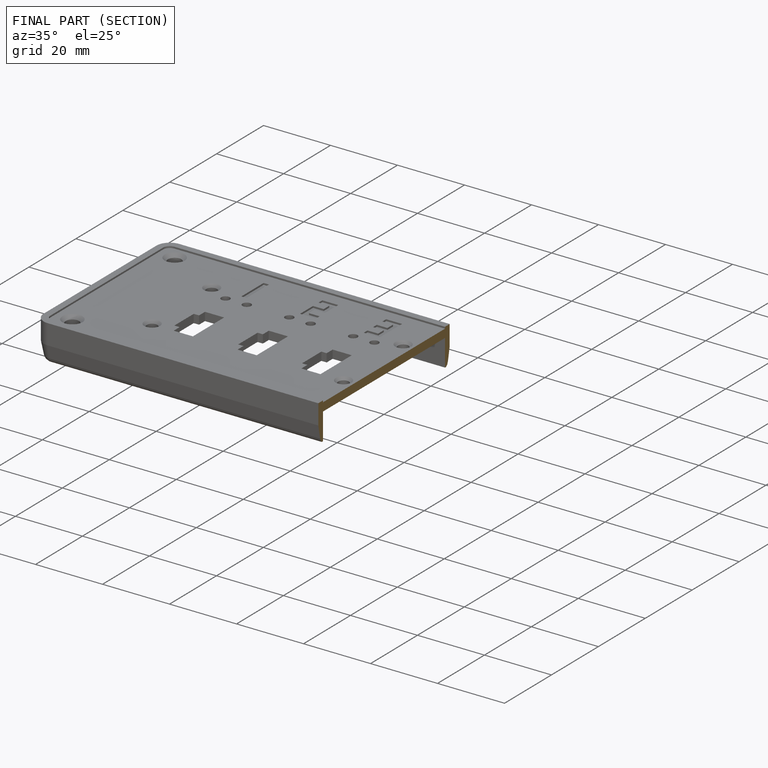
[diagram: finished part — half-section view (interior)]
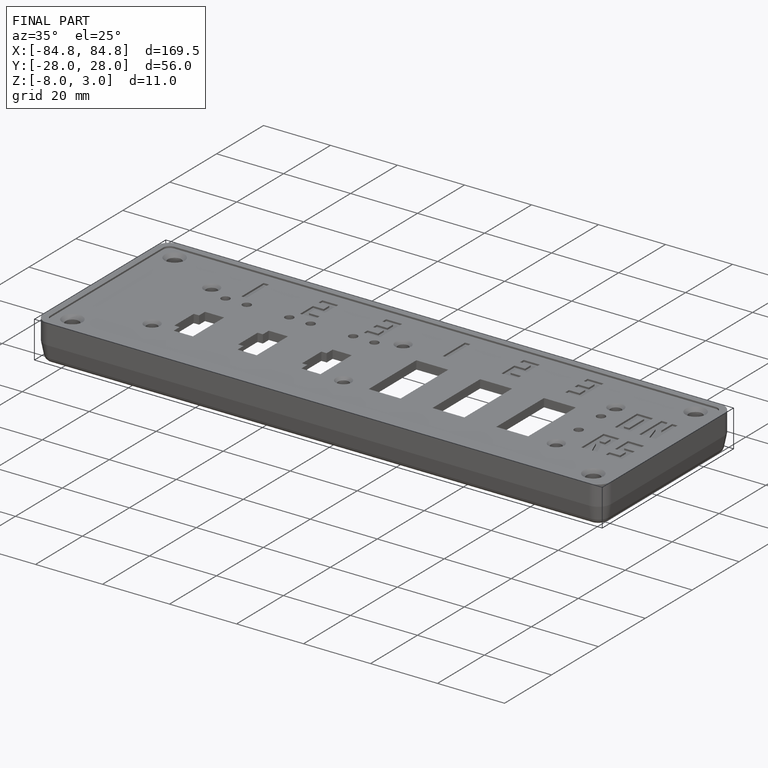
[diagram: finished part — iso view with bounding-box wireframe]
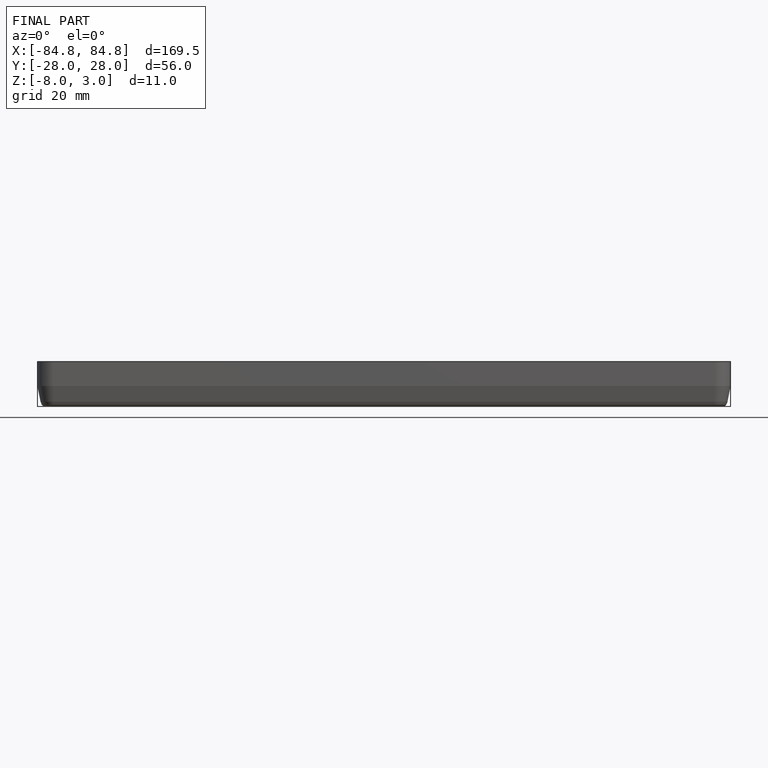
[diagram: finished part — front view with bounding-box wireframe]
